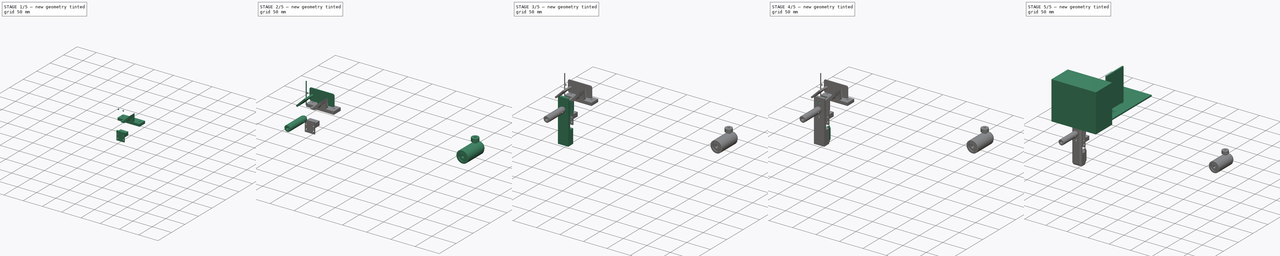
[diagram: build sequence overview — one tinted view per stage of 5, left to right]
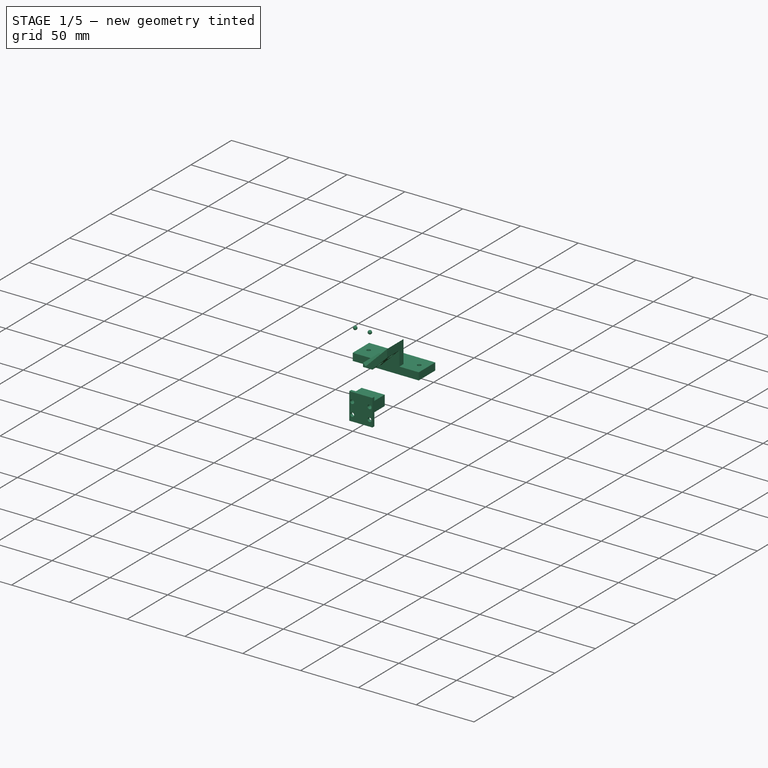
[diagram: stage 1 of 5 — iso view after this stage's code; geometry added in this stage tinted green]
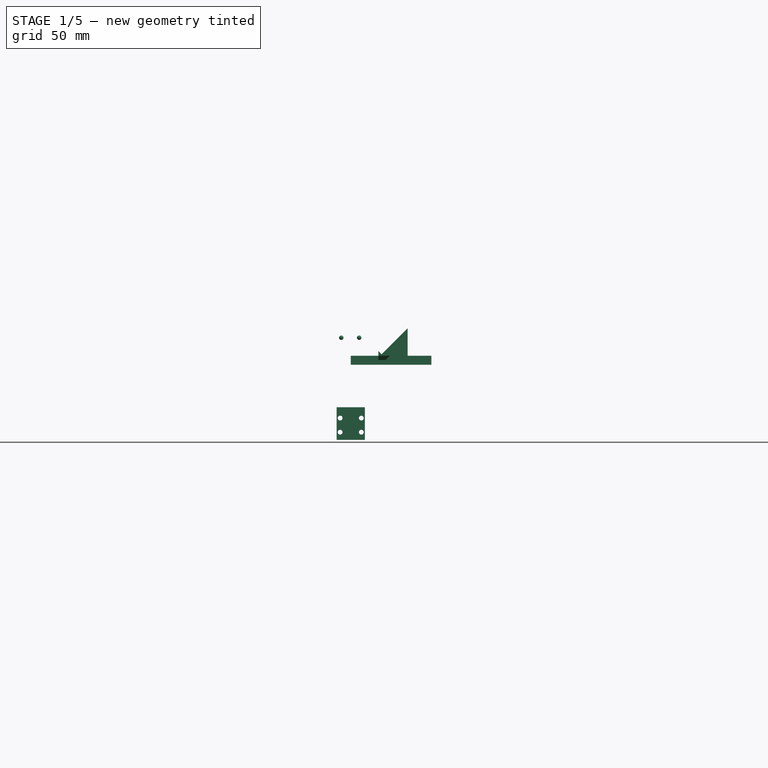
[diagram: stage 1 of 5 — front view after this stage's code; geometry added in this stage tinted green]
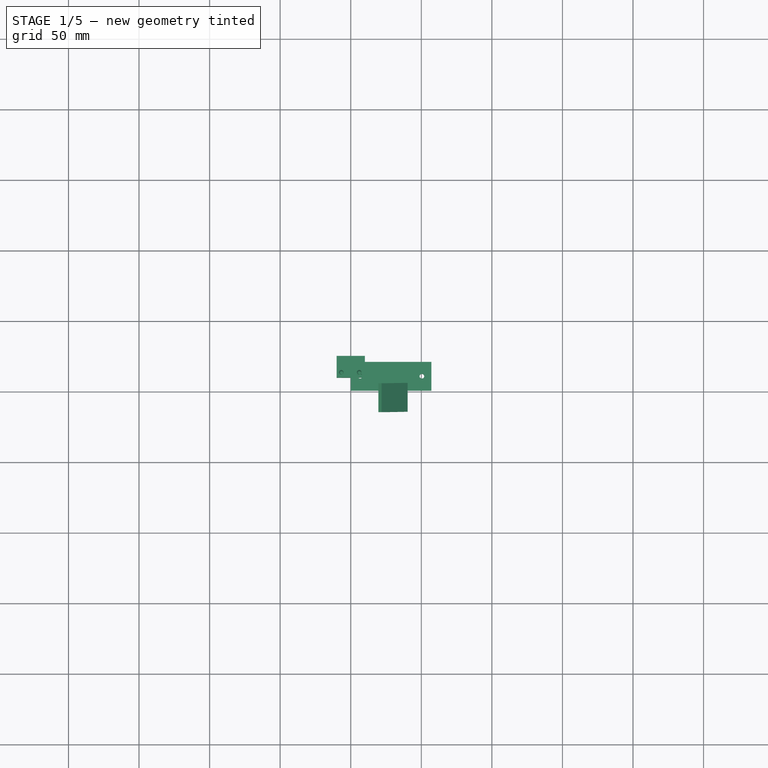
[diagram: stage 1 of 5 — top view after this stage's code; geometry added in this stage tinted green]
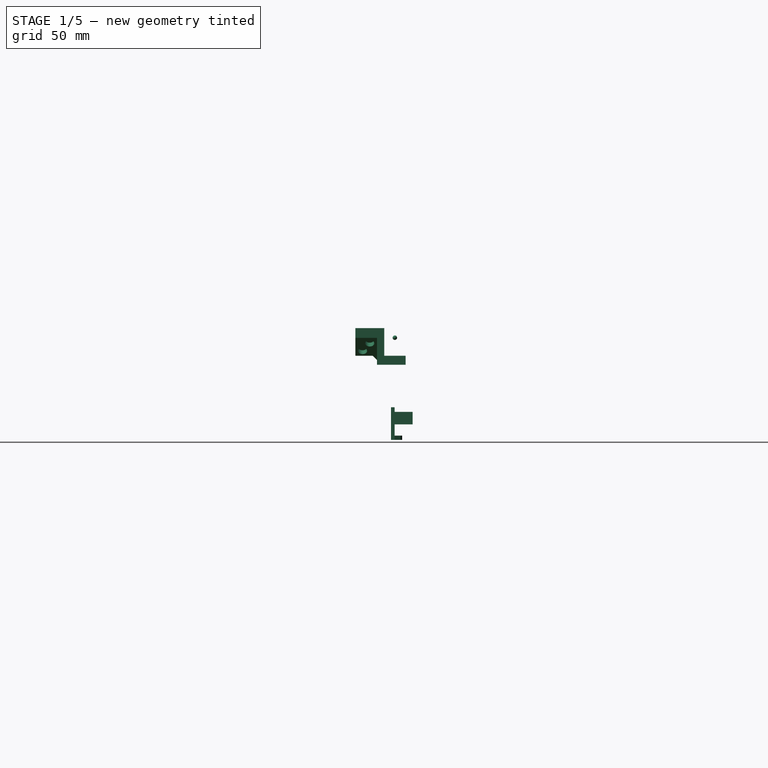
[diagram: stage 1 of 5 — right view after this stage's code; geometry added in this stage tinted green]
FCSTD DOCUMENT  (FreeCAD 0.20R29410 (Git))
Label: Rig model 2D doublestep
License: All rights reserved
LicenseURL: http://en.wikipedia.org/wiki/All_rights_reserved
objects: Part::Feature×62, Sketcher::SketchObject×31, PartDesign::Pad×18, App::Part×16, PartDesign::Pocket×13, PartDesign::Chamfer×9, PartDesign::Body×8, Part::Sphere×3, Spreadsheet::Sheet×3, Part::Box×2, Part::Compound2×2, PartDesign::Fillet×2, Part::MultiFuse×1, Part::Mirroring×1, Part::FeaturePython×1, Drawing::FeaturePage×1
note: 193 computed .brp shape members not serialized (recipe doc carries the construction recipe); baked Part::Feature solids carry a one-line shape summary decoded from their .brp

FEATURE [Part::Feature] Part__Feature016013001  label="0335-E0W001"
  Placement = pos=(0.00434,-0.02736,-50.7568) rot=(1,0,0;1.5708rad)
  shape: bbox 12.69 x 12.69 x 54.94 mm, 56 faces, 2 solids (baked)
FEATURE [App::Part] Part005  label="Strobe light"
  Group = -> [Box001,Sphere002,Array,Part__Feature016013001]
  Origin = -> Origin009
  Placement = pos=(127,0,-38.1) rot=(0,0,-1;0.959931rad)
FEATURE [Part::Feature] Part__Mirroring001  label="Rig wall assembly (Mirror #1)001"
  Placement = pos=(0,-6e-15,5e-15) rot=(0,0,1;3.14159rad)
  shape: bbox 15.9 x 57.07 x 76.12 mm, 23 faces, 2 solids (baked)
FEATURE [Drawing::FeaturePage] Page
  EditableTexts = AUTHOR NAME | DRAWING TITLE | FreeCAD DRAWING | A0 | X / Y | SCALE | PN | DN | DD/MM/YYYY | REV A
  Template = C:/Program Files/FreeCAD 0.20/data/Mod/Drawing/Templates/A0_Landscape_ISO7200.svg
FEATURE [Part::Feature] Part__Feature016013002  label="Carriage - 8438K3"
  Placement = pos=(0,0,-45.9996) rot=(0,0,1;0rad)
  shape: bbox 20 x 8.001 x 30 mm, 186 faces (baked)
  expr: .Placement.Base.z = -0.6492" + 0.0586656" - 31mm
FEATURE [Sketcher::SketchObject] Sketch036  label="Spout mount main profile"
  FullyConstrained = true
  MapMode = 5
  Placement = pos=(0,10,-45.9996) rot=(0,0.707107,0.707107;3.14159rad)
  expr: Constraints[10] = 3.4mm / 2
  expr: Constraints[14] = 15mm
  expr: Constraints[16] = 10mm
  expr: Constraints[17] = 5.4mm
  sketch-geometry (8):
    g0: LineSegment StartX=-9.99998 StartY=12.7 StartZ=0 EndX=9.99998 EndY=12.7 EndZ=0
    g1: LineSegment StartX=9.99998 StartY=12.7 StartZ=0 EndX=9.99998 EndY=-10.3988 EndZ=0
    g2: LineSegment StartX=9.99998 StartY=-10.3988 StartZ=0 EndX=-9.99998 EndY=-10.3988 EndZ=0
    g3: LineSegment StartX=-9.99998 StartY=-10.3988 StartZ=0 EndX=-9.99998 EndY=12.7 EndZ=0
    g4: Circle CenterX=-7.5 CenterY=5.00124 CenterZ=0 NormalX=0 NormalY=0 NormalZ=1 AngleXU=0 Radius=1.7
    g5: Circle CenterX=-7.5 CenterY=-4.99876 CenterZ=0 NormalX=0 NormalY=0 NormalZ=1 AngleXU=0 Radius=1.7
    g6: Circle CenterX=7.5 CenterY=-4.99876 CenterZ=0 NormalX=0 NormalY=0 NormalZ=1 AngleXU=0 Radius=1.7
    g7: Circle CenterX=7.5 CenterY=5.00124 CenterZ=0 NormalX=0 NormalY=0 NormalZ=1 AngleXU=0 Radius=1.7
  constraints (21):
    c: Coincident(g0,g1)
    c: Coincident(g1,g2)
    c: Coincident(g2,g3)
    c: Coincident(g3,g0)
    c: Horizontal(g2)
    c: Vertical(g1)
    c: Vertical(g3)
    c: DistanceX(g0,g0) = 20
    c: Symmetric(g0,g0,g-2)
    c: DistanceY(g2) = -10.3988
    c: Radius(g4) = 1.7
    c: Equal(g4,g5) = 1.7
    c: Symmetric(g4,g7,g-2)
    c: Symmetric(g5,g6,g-2)
    c: DistanceX(g5,g6) = 15
    c: DistanceX(g5,g4) = 0
    c: DistanceY(g5,g4) = 10
    c: DistanceY(g2,g5) = 5.4
    c: Equal(g4,g7)
    c: Equal(g7,g6)
    c: DistanceY(g0) = 12.7
FEATURE [PartDesign::Pad] Pad003
  AllowMultiFace = false
  Direction = (1,1,1)
  Length = 2.54
  Length2 = 99.9998
  Placement = pos=(0,10,-45.9996) rot=(0,0.707107,0.707107;3.14159rad)
  Profile = -> Sketch036
  Type = 0
FEATURE [PartDesign::Body] Body004  label="Linear actuator static mount"
  Group = -> [Sketch044,Sketch045,Sketch046,Sketch047,Pad009,Pocket010,Pocket011,Pocket012,Sketch048,Pad010,Sketch049,Pocket013,Chamfer003]
  Origin = -> Origin014
  Tip = -> Chamfer003
FEATURE [Sketcher::SketchObject] Sketch051  label="Spout mount main profile001"
  FullyConstrained = true
  MapMode = 5
  Placement = pos=(0,12.54,-45.9996) rot=(0,0.707107,0.707107;3.14159rad)
  Support = -> [Pad003]
  expr: Constraints[10] = 3.4mm / 2
  expr: Constraints[14] = 15mm
  expr: Constraints[16] = 10mm
  expr: Constraints[17] = 5.4mm
  sketch-geometry (13):
    g0: LineSegment StartX=-9.99998 StartY=12.7 StartZ=0 EndX=9.99998 EndY=12.7 EndZ=0
    g1: LineSegment StartX=9.99998 StartY=12.7 StartZ=0 EndX=9.99998 EndY=-10.3988 EndZ=0
    g2: LineSegment StartX=9.99998 StartY=-10.3988 StartZ=0 EndX=-9.99998 EndY=-10.3988 EndZ=0
    g3: LineSegment StartX=-9.99998 StartY=-10.3988 StartZ=0 EndX=-9.99998 EndY=12.7 EndZ=0
    g4: Circle CenterX=-7.5 CenterY=5.00124 CenterZ=0 NormalX=0 NormalY=0 NormalZ=1 AngleXU=0 Radius=1.7
    g5: Circle CenterX=-7.5 CenterY=-4.99876 CenterZ=0 NormalX=0 NormalY=0 NormalZ=1 AngleXU=0 Radius=1.7
    g6: Circle CenterX=7.5 CenterY=-4.99876 CenterZ=0 NormalX=0 NormalY=0 NormalZ=1 AngleXU=0 Radius=1.7
    g7: Circle CenterX=7.5 CenterY=5.00124 CenterZ=0 NormalX=0 NormalY=0 NormalZ=1 AngleXU=0 Radius=1.7
    g8: LineSegment StartX=-9.99998 StartY=9.44624 StartZ=0 EndX=9.99998 EndY=9.44624 EndZ=0
    g9: LineSegment StartX=9.99998 StartY=9.44624 StartZ=0 EndX=9.99998 EndY=0.55624 EndZ=0
    g10: LineSegment StartX=9.99998 StartY=0.55624 StartZ=0 EndX=-9.99998 EndY=0.55624 EndZ=0
    g11: LineSegment StartX=-9.99998 StartY=0.55624 StartZ=0 EndX=-9.99998 EndY=9.44624 EndZ=0
    g12: LineSegment StartX=-7.5 StartY=5.00124 StartZ=0 EndX=7.5 EndY=5.00124 EndZ=0
  constraints (33):
    c: Coincident(g0,g1)
    c: Coincident(g1,g2)
    c: Coincident(g2,g3)
    c: Coincident(g3,g0)
    c: Horizontal(g2)
    c: Vertical(g1)
    c: Vertical(g3)
    c: DistanceX(g0,g0) = 20
    c: Symmetric(g0,g0,g-2)
    c: DistanceY(g2) = -10.3988
    c: Radius(g4) = 1.7
    c: Equal(g4,g5) = 1.7
    c: Symmetric(g4,g7,g-2)
    c: Symmetric(g5,g6,g-2)
    c: DistanceX(g5,g6) = 15
    c: DistanceX(g5,g4) = 0
    c: DistanceY(g5,g4) = 10
    c: DistanceY(g2,g5) = 5.4
    c: Equal(g4,g7)
    c: Equal(g7,g6)
    c: DistanceY(g0) = 12.7
    c: Coincident(g8,g9)
    c: Coincident(g9,g10)
    c: Coincident(g10,g11)
    c: Coincident(g11,g8)
    c: Horizontal(g10)
    c: Vertical(g11)
    c: Symmetric(g8,g8,g-2)
    c: Coincident(g12,g4)
    c: Coincident(g12,g7)
    c: DistanceX(g8,g0) = 0
    c: Symmetric(g8,g9,g12)
    c: DistanceY(g9,g9) = 8.89
FEATURE [PartDesign::Pad] Pad011
  BaseFeature = -> Pad003
  Direction = (1,1,1)
  Length = 12.7
  Length2 = 99.9998
  Placement = pos=(0,10,-45.9996) rot=(0,0.707107,0.707107;3.14159rad)
  Profile = -> Sketch051
  Type = 0
FEATURE [PartDesign::Pad] Pad012
  BaseFeature = -> Pad011
  Direction = (1,1,1)
  Length = 2.975
  Length2 = 99.9998
  Placement = pos=(0,10,-45.9996) rot=(0,0.707107,0.707107;3.14159rad)
  Profile = -> Sketch050
  Reversed = true
  Type = 0
  expr: Length = 0.125" - 0.2mm
FEATURE [Part::Feature] Compound002001  label="91800A077_18-8 Stainless Steel Narrow Cheese Head Slotted Screws001"
  Placement = pos=(12.7,13.1,-63.5) rot=(0,1,0;1.5708rad)
  shape: bbox 3.885 x 2.35 x 2.302 mm, 68 faces, 2 solids (baked)
FEATURE [Part::Feature] Compound002002  label="91800A077_18-8 Stainless Steel Narrow Cheese Head Slotted Screws002"
  Placement = pos=(12.7,18.7,-63.5) rot=(0,1,0;1.5708rad)
  shape: bbox 3.885 x 2.35 x 2.302 mm, 68 faces, 2 solids (baked)
FEATURE [Part::Feature] Compound002003  label="91800A077_18-8 Stainless Steel Narrow Cheese Head Slotted Screws003"
  Placement = pos=(12.7,13.1,-90.5) rot=(0,1,0;1.5708rad)
  shape: bbox 3.885 x 2.35 x 2.302 mm, 68 faces, 2 solids (baked)
FEATURE [Part::Feature] Compound002004  label="91800A077_18-8 Stainless Steel Narrow Cheese Head Slotted Screws004"
  Placement = pos=(12.7,18.7,-90.5) rot=(0,1,0;1.5708rad)
  shape: bbox 3.885 x 2.35 x 2.302 mm, 68 faces, 2 solids (baked)
FEATURE [App::Part] Part013  label="Motor mount screws"
  Group = -> [Compound002001,Compound002002,Compound002003,Compound002004]
  Origin = -> Origin023
  Placement = pos=(-6.95,0,0) rot=(0,0,1;0rad)
FEATURE [App::Part] Part008  label="Static parts"
  Group = -> [Body004,Part__Feature016013004,Part013,Part__Feature016013005,Solid012,Solid013,Compound001]
  Origin = -> Origin013
FEATURE [Part::Feature] Compound002005  label="91800A077_18-8 Stainless Steel Narrow Cheese Head Slotted Screws005"
  Placement = pos=(12.7,13.1,-63.5) rot=(0,1,0;1.5708rad)
  shape: bbox 3.885 x 2.35 x 2.302 mm, 68 faces, 2 solids (baked)
FEATURE [Part::Feature] Compound002006  label="91800A077_18-8 Stainless Steel Narrow Cheese Head Slotted Screws006"
  Placement = pos=(12.7,18.7,-63.5) rot=(0,1,0;1.5708rad)
  shape: bbox 3.885 x 2.35 x 2.302 mm, 68 faces, 2 solids (baked)
FEATURE [Part::Feature] Compound002007  label="91800A077_18-8 Stainless Steel Narrow Cheese Head Slotted Screws007"
  Placement = pos=(12.7,13.1,-90.5) rot=(0,1,0;1.5708rad)
  shape: bbox 3.885 x 2.35 x 2.302 mm, 68 faces, 2 solids (baked)
FEATURE [Part::Feature] Compound002008  label="91800A077_18-8 Stainless Steel Narrow Cheese Head Slotted Screws008"
  Placement = pos=(12.7,18.7,-90.5) rot=(0,1,0;1.5708rad)
  shape: bbox 3.885 x 2.35 x 2.302 mm, 68 faces, 2 solids (baked)
FEATURE [App::Part] Part014  label="Motor mount screws001"
  Group = -> [Compound002005,Compound002006,Compound002007,Compound002008]
  Origin = -> Origin024
  Placement = pos=(-6.925,0,0) rot=(0,0,1;0rad)
FEATURE [App::Part] Part012  label="Static parts001"
  Group = -> [Body006,Part__Feature016013008,Part014,Part__Feature016013009]
  Origin = -> Origin019
FEATURE [App::Part] Part010  label="Top spout assembly"
  Group = -> [Part011,Spreadsheet001,Part012]
  Origin = -> Origin016
  Placement = pos=(-23.5,30.25,-40.75) rot=(0,1,0;4.71239rad)
FEATURE [Sketcher::SketchObject] Sketch064  label="Mounting platform"
  FullyConstrained = false
  MapMode = 5
  Support = -> [XY_Plane025]
  expr: Constraints[11] = 0.13in / 2
  expr: Constraints[15] = (2.25in - 1.72in) / 2
  expr: Constraints[16] = (2.25in - 1.72in) / 2
  expr: Constraints[9] = <<ss002>>.w
  sketch-geometry (6):
    g0: LineSegment StartX=0 StartY=20.32 StartZ=0 EndX=57.15 EndY=20.32 EndZ=0
    g1: LineSegment StartX=57.15 StartY=20.32 StartZ=0 EndX=57.15 EndY=0 EndZ=0
    g2: LineSegment StartX=57.15 StartY=0 StartZ=0 EndX=0 EndY=0 EndZ=0
    g3: LineSegment StartX=0 StartY=0 StartZ=0 EndX=0 EndY=20.32 EndZ=0
    g4: Circle CenterX=6.731 CenterY=10.16 CenterZ=0 NormalX=0 NormalY=0 NormalZ=1 AngleXU=0 Radius=1.651
    g5: Circle CenterX=50.419 CenterY=10.16 CenterZ=0 NormalX=0 NormalY=0 NormalZ=1 AngleXU=0 Radius=1.651
  constraints (17):
    c: Coincident(g0,g1)
    c: Coincident(g1,g2)
    c: Coincident(g2,g3)
    c: Coincident(g3,g0)
    c: Horizontal(g0)
    c: Horizontal(g2)
    c: Vertical(g1)
    c: Vertical(g3)
    c: Coincident(g2,g-1)
    c: Distance(g0) = 57.15
    c: Distance(g1) = 20.32
    c: Radius(g4) = 1.651
    c: Equal(g4,g5)
    c: DistanceY(g5,g4) = 0
    c: DistanceY(g-1,g4) = 10.16
    c: DistanceX(g4) = 6.731
    c: DistanceX(g5,g1) = 6.731
FEATURE [PartDesign::Pad] Pad021
  AllowMultiFace = false
  Direction = (1,1,1)
  Length = 6.35
  Length2 = 99.9998
  Midplane = true
  Profile = -> Sketch064
  Type = 0
FEATURE [Sketcher::SketchObject] Sketch003  label="Mirror mount"
  FullyConstrained = false
  MapMode = 5
  Placement = pos=(0,0,0) rot=(1,0,0;1.5708rad)
  expr: Constraints[14] = 3.2mm
  expr: Constraints[7] = <<ss002>>.xMirror
  sketch-geometry (7):
    g0: LineSegment StartX=40.3568 StartY=3.175 StartZ=0 EndX=40.3568 EndY=22.7116 EndZ=0
    g1: LineSegment StartX=40.3568 StartY=22.7116 StartZ=0 EndX=21.8575 EndY=4.21226 EndZ=0
    g2: LineSegment StartX=21.8575 StartY=4.21226 StartZ=0 EndX=19.6124 EndY=6.45732 EndZ=0
    g3: LineSegment StartX=19.6124 StartY=6.45732 StartZ=0 EndX=19.6124 EndY=3.175 EndZ=0
    g4: LineSegment StartX=21.8575 StartY=4.21226 StartZ=0 EndX=19.5947 EndY=6.475 EndZ=0
    g5: LineSegment StartX=19.6124 StartY=3.175 StartZ=0 EndX=40.3568 EndY=3.175 EndZ=0
    g6: LineSegment StartX=19.5947 StartY=6.475 StartZ=0 EndX=37.5553 EndY=24.4355 EndZ=0
  constraints (21):
    c: Coincident(g2,g3)
    c: Perpendicular(g1,g2)
    c: Distance(g1) = 26.162
    c: Vertical(g3)
    c: Vertical(g0)
    c: Coincident(g1,g4)
    c: Parallel(g4,g2)
    c: DistanceX(g-1,g4) = 19.5947
    c: DistanceY(g3,g4) = 3.3
    c: Coincident(g0,g5)
    c: Coincident(g3,g5)
    c: Horizontal(g5)
    c: DistanceY(g-1,g3) = 3.175
    c: Coincident(g1,g2)
    c: Distance(g4) = 3.2
    c: Angle(g5,g1) = 0.785398
    c: Coincident(g1,g0)
    c: Distance(g2) = 3.175
    c: Distance(g6) = 25.4
    c: Coincident(g6,g4)
    c: Perpendicular(g4,g6)
FEATURE [PartDesign::Pad] Pad002
  AllowMultiFace = false
  BaseFeature = -> Pad021
  Direction = (1,1,1)
  Length = 15.24
  Length2 = 5.1402
  Profile = -> Sketch003
  Type = 4
  expr: Length2 = <<ss002>>.dyWall
FEATURE [PartDesign::Chamfer] Chamfer006  label="Chamfer007"
  Angle = 45
  Base = -> Pad002 [Edge31]
  BaseFeature = -> Pad002
  ChamferType = 0
  FlipDirection = false
  Size = 12.7
  Size2 = 1
  SupportTransform = false
  UseAllEdges = false
FEATURE [PartDesign::Chamfer] Chamfer001
  Angle = 45
  Base = -> Chamfer006 [Edge1]
  BaseFeature = -> Chamfer006
  ChamferType = 0
  FlipDirection = false
  Size = 3.048
  Size2 = 1
  SupportTransform = false
  UseAllEdges = false
FEATURE [Sketcher::SketchObject] Sketch004  label="Magnet holes"
  FullyConstrained = false
  MapMode = 5
  Placement = pos=(12.2409,-5.9e-15,-12.2409) rot=(0.678598,0.678598,0.281085;2.59356rad)
  Support = -> [Chamfer001]
  expr: Constraints[0] = (0.25in + 0.003in) / 2
  sketch-geometry (2):
    g0: Circle CenterX=-10.16 CenterY=26.67 CenterZ=0 NormalX=0 NormalY=0 NormalZ=1 AngleXU=0 Radius=3.2131
    g1: Circle CenterX=-5.08 CenterY=34.29 CenterZ=0 NormalX=0 NormalY=0 NormalZ=1 AngleXU=0 Radius=3.2131
  constraints (6):
    c: Radius(g0) = 3.2131
    c: Equal(g0,g1)
    c: DistanceX(g0,g-1) = 10.16
    c: DistanceY(g-1,g0) = 26.67
    c: DistanceX(g0,g1) = 5.08
    c: DistanceY(g0,g1) = 7.62
FEATURE [PartDesign::Pocket] Pocket001
  AllowMultiFace = false
  BaseFeature = -> Chamfer001
  Direction = (1,1,1)
  Length = 3.81762
  Length2 = 99.9998
  Profile = -> Sketch004
  Type = 0
  expr: Length = 0.1903" - 0.04"
FEATURE [PartDesign::Body] Body009  label="Mirror mount001"
  Group = -> [Sketch064,Pad021,Sketch003,Pad002,Chamfer006,Chamfer001,Sketch004,Pocket001,Sketch005,Pad022,Sketch006,Pad023,Sketch007,Pad005,Chamfer007,Fillet,Fillet003,Chamfer008]
  Origin = -> Origin025
  Placement = pos=(-28.555,2.545,-3.175) rot=(0,0,1;0rad)
  Tip = -> Chamfer008
FEATURE [Part::Sphere] Sphere001
  Angle1 = -90
  Angle2 = 90
  Angle3 = 360
  AttacherType = Attacher::AttachEngine3D
  Placement = pos=(5.969,12.7,15.9766) rot=(0,0,1;0rad)
  Radius = 1.5875
  expr: Radius = 0.125" / 2
FEATURE [Part::Sphere] Sphere
  Angle1 = -90
  Angle2 = 90
  Angle3 = 360
  AttacherType = Attacher::AttachEngine3D
  Placement = pos=(-6.7056,12.7,15.9766) rot=(0,0,1;0rad)
  Radius = 1.5875
  expr: Radius = 0.125" / 2
FEATURE [Part::Feature] Fusion001  label="Rig wall assembly001"
  Placement = pos=(-306.832,-87.0458,-101.6) rot=(1,0,0;1.5708rad)
  shape: bbox 15.9 x 57.07 x 76.12 mm, 23 faces, 2 solids (baked)
FEATURE [App::Part] Part  label="Platform"
  Group = -> [Sphere,Sphere001,Body001,Fusion,Body,Extrude001,Part__Mirroring,Part__Mirroring001,Box,Body009,Fusion001]
  Origin = -> Origin
  Placement = pos=(304.8,88.9,12.7) rot=(0,0,1;0rad)
FEATURE [App::Part] Part015  label="Other moving parts"
  Group = -> [Body002,Part__Feature016013002,Solid004,Solid005,Part__Feature016013003]
  Origin = -> Origin026
FEATURE [App::Part] Part007  label="Moving parts"
  Group = -> [Part010,Part015]
  Origin = -> Origin012
  Placement = pos=(0,0,19.5) rot=(0,0,1;0rad)
FEATURE [App::Part] Part009  label="Bottom spout assembly"
  Group = -> [Part007,Spreadsheet,Part008]
  Origin = -> Origin015
  Placement = pos=(281.825,25.425,30.35) rot=(-0.57735,0.57735,0.57735;4.18879rad)
FEATURE [App::Part] Part003  label="Spout assembly"
  Group = -> [Part009]
  Origin = -> Origin006
  Placement = pos=(0,0,-35.56) rot=(0,0,1;0rad)
FEATURE [App::Part] Part006  label="Rig"
  Group = -> [Part,MB1218,Part001,Part002,Part003,Part005]
  Origin = -> Origin010
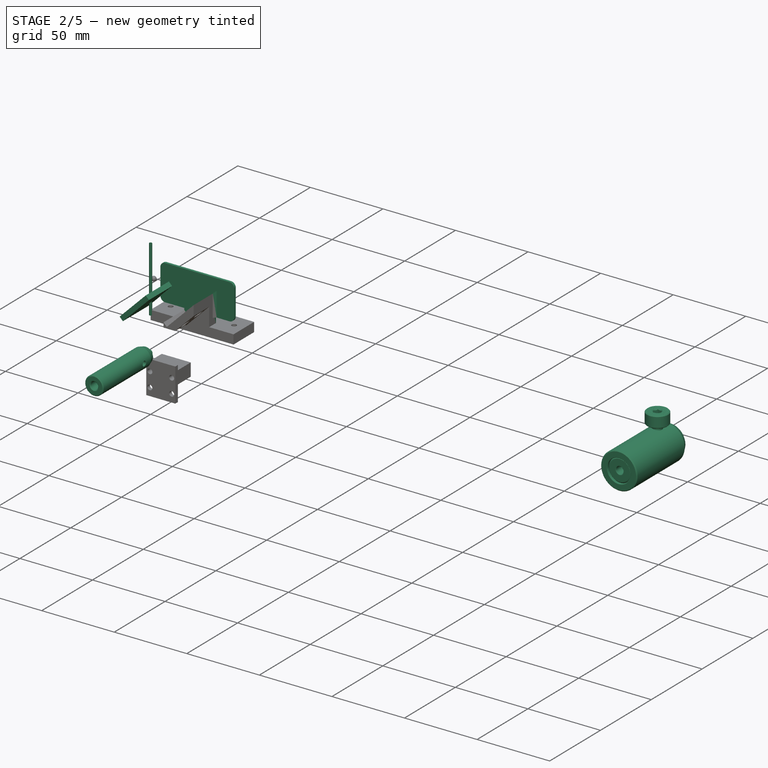
[diagram: stage 2 of 5 — iso view after this stage's code; geometry added in this stage tinted green]
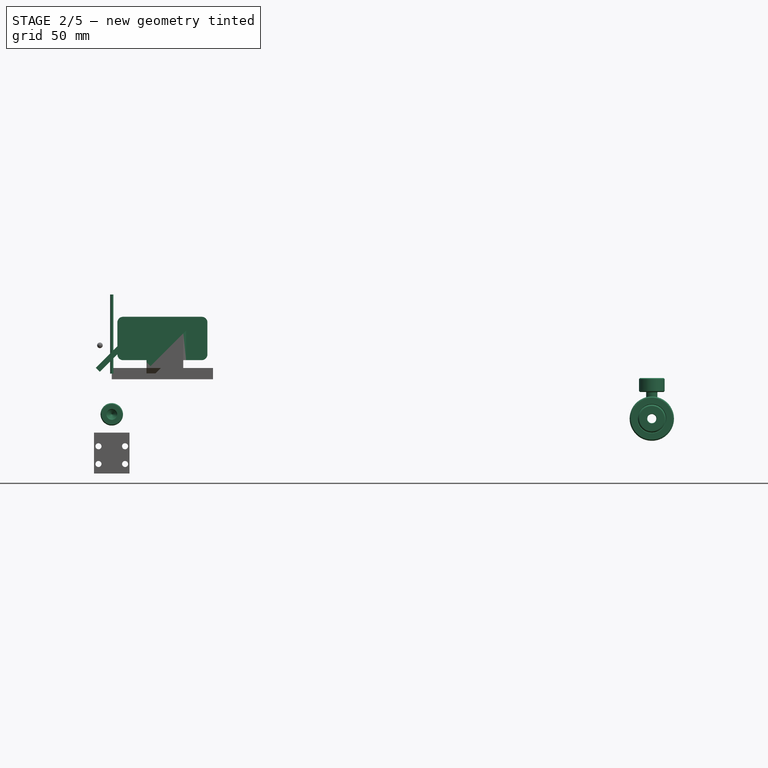
[diagram: stage 2 of 5 — front view after this stage's code; geometry added in this stage tinted green]
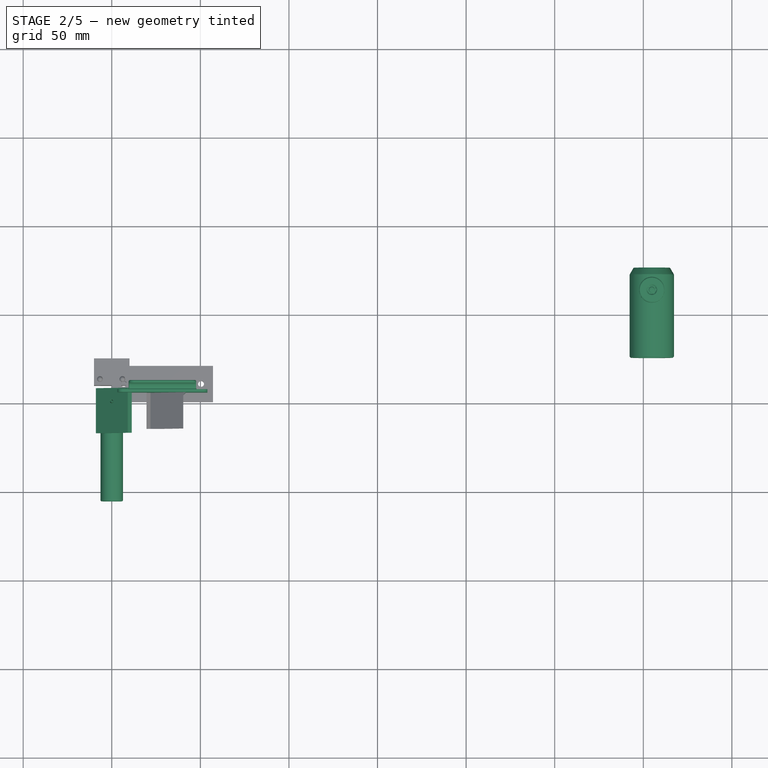
[diagram: stage 2 of 5 — top view after this stage's code; geometry added in this stage tinted green]
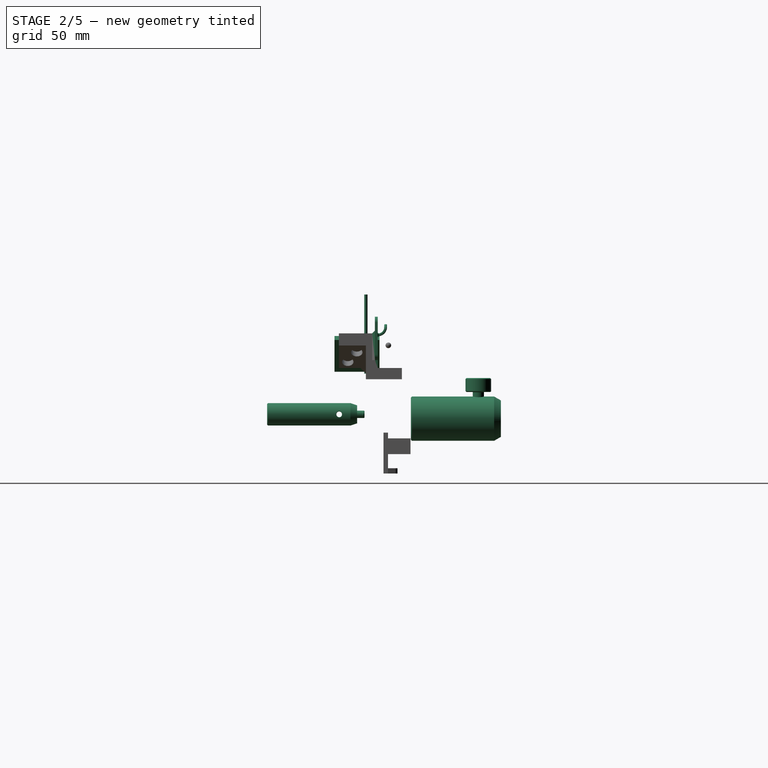
[diagram: stage 2 of 5 — right view after this stage's code; geometry added in this stage tinted green]
FEATURE [PartDesign::Body] Body007  label="Linear actuator dynamic mount002"
  Group = -> [Sketch061,Pad018,Sketch037,Sketch038,Pad004,Sketch040,Pocket005,Pocket006,Chamfer,Sketch062,Pad019,Chamfer002,Chamfer005]
  Origin = -> Origin021
  Tip = -> Chamfer005
FEATURE [Part::Feature] Solid  label="90116A150_316 Stainless Steel Pan Head Phillips Screws"
  Placement = pos=(7.5,7.5,-41) rot=(-1,0,0;1.5708rad)
  shape: bbox 6.495 x 7.719 x 6.495 mm, 90 faces (baked)
FEATURE [Part::Feature] Solid001  label="90116A150_316 Stainless Steel Pan Head Phillips Screws001"
  Placement = pos=(-7.5,7.5,-41) rot=(-1,0,0;1.5708rad)
  shape: bbox 6.495 x 7.719 x 6.495 mm, 90 faces (baked)
FEATURE [Part::Feature] Solid002  label="90116A150_316 Stainless Steel Pan Head Phillips Screws002"
  Placement = pos=(7.5,7.5,-51) rot=(-1,0,0;1.5708rad)
  shape: bbox 6.495 x 7.719 x 6.495 mm, 90 faces (baked)
FEATURE [Part::Feature] Solid003  label="90116A150_316 Stainless Steel Pan Head Phillips Screws003"
  Placement = pos=(-7.5,7.5,-51) rot=(-1,0,0;1.5708rad)
  shape: bbox 6.495 x 7.719 x 6.495 mm, 90 faces (baked)
FEATURE [Part::Feature] Solid004  label="90116A150_316 Stainless Steel Pan Head Phillips Screws004"
  Placement = pos=(-7.5,7.5,-51) rot=(-1,0,0;1.5708rad)
  shape: bbox 6.495 x 7.719 x 6.495 mm, 90 faces (baked)
FEATURE [Part::Feature] Solid005  label="90116A150_316 Stainless Steel Pan Head Phillips Screws005"
  Placement = pos=(7.5,7.5,-51) rot=(-1,0,0;1.5708rad)
  shape: bbox 6.495 x 7.719 x 6.495 mm, 90 faces (baked)
FEATURE [Part::Box] Box  label="Mirror"
  AttacherType = Attacher::AttachEngine3D
  Height = 25.4
  Length = 3.2
  Placement = pos=(-8.96258,-17.675,3.30572) rot=(0,1,0;0.785398rad)
  Width = 25.4
  expr: Height = 1"
  expr: Width = 1"
FEATURE [Sketcher::SketchObject] Sketch063  label="Spout profile"
  FullyConstrained = true
  MapMode = 5
  Support = -> [XY_Plane022]
  expr: Constraints[3] = 0.07199999999999999" - 2 * 0.005"
  sketch-geometry (2):
    g0: Circle CenterX=0 CenterY=0 CenterZ=0 NormalX=0 NormalY=0 NormalZ=1 AngleXU=0 Radius=0.9144
    g1: Circle CenterX=0 CenterY=0 CenterZ=0 NormalX=0 NormalY=0 NormalZ=1 AngleXU=0 Radius=0.7874
  constraints (4):
    c: Coincident(g0,g-1)
    c: Coincident(g1,g0)
    c: Diameter(g0) = 1.8288
    c: Diameter(g1) = 1.5748
FEATURE [PartDesign::Pad] Pad020
  Direction = (0,0,1)
  Length = 44.7
  Length2 = 10
  Profile = -> Sketch063
  ReferenceAxis = -> Sketch063 [N_Axis]
  Type = 0
FEATURE [PartDesign::Body] Body008  label="Spout"
  Group = -> [Sketch063,Pad020]
  Origin = -> Origin022
  Placement = pos=(0,13.275,-26.1) rot=(0,0,1;0rad)
  Tip = -> Pad020
FEATURE [App::Part] Part011  label="Moving parts001"
  Group = -> [Part__Feature016013006,Body007,Solid,Solid001,Solid002,Solid003,Body008,Part__Feature016013007]
  Origin = -> Origin018
  Placement = pos=(0,0,14.5) rot=(0,0,1;0rad)
FEATURE [Part::Feature] Solid006
  shape: bbox 25 x 50.8 x 25 mm, 23 faces (baked)
FEATURE [Part::Feature] Solid007
  shape: bbox 15.88 x 5.969 x 15.88 mm, 14 faces (baked)
FEATURE [Part::Feature] Solid008
  shape: bbox 14.48 x 14.48 x 16.13 mm, 276 faces (baked)
FEATURE [Part::Feature] Solid009
  shape: bbox 2.997 x 2.997 x 3.556 mm, 8 faces (baked)
FEATURE [Part::Feature] Solid010
  shape: bbox 3.505 x 3.505 x 3.175 mm, 16 faces (baked)
FEATURE [Part::Feature] Solid011
  shape: bbox 3.419 x 3.38 x 7.519 mm, 25 faces (baked)
FEATURE [Part::Compound2] Compound  label="0493-E0W"
  Links = -> [Solid006,Solid007,Solid008,Solid009,Solid010,Solid011]
  Placement = pos=(304.8,50.8,-25.4) rot=(0,0,1;0rad)
FEATURE [App::Part] MB1218  label="Rig base"
  Group = -> [Part__Feature,Part__Feature001,Part__Feature002,Part__Feature003,Part__Feature004,Part__Feature005,Part__Feature006,Part__Feature007,Part__Feature008,Part__Feature009,Part__Feature010,Part__Feature012,Solid009,Solid011,Solid010,Solid007,Solid006,Solid008,Compound]
  Origin = -> Origin002
  Placement = pos=(0,0,-101.6) rot=(1,0,0;1.5708rad)
FEATURE [Part::Feature] Solid012
  shape: bbox 12.67 x 50.8 x 12.67 mm, 26 faces (baked)
FEATURE [Part::Feature] Solid013
  shape: bbox 4.166 x 12.7 x 4.166 mm, 30 faces (baked)
FEATURE [Part::Compound2] Compound001  label="0335-E0W"
  Links = -> [Solid012,Solid013]
  Placement = pos=(0,-55.6895,-22.97) rot=(0,-1,0;1.5708rad)
  expr: .Placement.Base.y = -63.5mm
  expr: .Placement.Base.z = -25.4mm + 2.43mm
FEATURE [Spreadsheet::Sheet] Spreadsheet002  label="ss002"
  cells = A1=Wall displacement; B1(dyWall)==1mm + 0.163"; A2=Post displacement; B2(dyPost)==1mm + 0.4"; A3=Mount width; B3(w)==2.25"; A4=Wall thickness; B4(Wt)==0.0625"; A5=Wall height; B5(Wh)==1" + 1.5mm + 2mm; A6=Base thickness; B6(Bt)==0.25"; A7=Acrylic gap; B7(AGt)==0.125" + 0.05"; A8=Perch height; B8(Ph)==17.7165mm + 0.5mm + 6.5mm; A9=Mirror start point; B9(xMirror)==(2.25" - 1" / sqrt(2)) / 2
FEATURE [Sketcher::SketchObject] Sketch005  label="Wall"
  AttachmentOffset = pos=(0,0,28.575) rot=(0,0,1;0rad)
  FullyConstrained = false
  MapMode = 5
  Placement = pos=(28.575,-6.3e-15,6.3e-15) rot=(0.57735,0.57735,0.57735;2.0944rad)
  Support = -> [YZ_Plane025]
  expr: .AttachmentOffset.Base.z = <<ss002>>.w / 2
  expr: Constraints[26] = <<ss002>>.Wt
  expr: Constraints[27] = <<ss002>>.Wh + <<ss002>>.Bt / 2
  expr: Constraints[33] = <<ss002>>.dyPost
  expr: Constraints[34] = <<ss002>>.dyWall
  expr: Constraints[35] = <<ss002>>.Bt / 2 + <<ss002>>.AGt
  expr: Constraints[37] = <<ss002>>.Bt / 2 + <<ss002>>.Ph
  sketch-geometry (13):
    g0: LineSegment StartX=6.7277 StartY=25.8405 StartZ=0 EndX=6.7277 EndY=32.075 EndZ=0
    g1: LineSegment StartX=6.7277 StartY=32.075 StartZ=0 EndX=5.1402 EndY=32.075 EndZ=0
    g2: LineSegment StartX=5.1402 StartY=32.075 StartZ=0 EndX=5.1402 EndY=7.62 EndZ=0
    g3: LineSegment StartX=5.1402 StartY=7.62 StartZ=0 EndX=6.7277 EndY=7.62 EndZ=0
    g4: LineSegment StartX=6.7277 StartY=7.62 StartZ=0 EndX=6.7277 EndY=24.253 EndZ=0
    g5: ArcOfCircle CenterX=6.7277 CenterY=29.479 CenterZ=0 NormalX=0 NormalY=0 NormalZ=1 AngleXU=0 Radius=5.22605 StartAngle=4.71239 EndAngle=6.28318
    g6: ArcOfCircle CenterX=6.7277 CenterY=29.479 CenterZ=0 NormalX=0 NormalY=0 NormalZ=1 AngleXU=0 Radius=3.63855 StartAngle=4.71239 EndAngle=6.28319
    g7: LineSegment StartX=11.9537 StartY=29.479 StartZ=0 EndX=11.9537 EndY=27.8915 EndZ=0
    g8: LineSegment StartX=10.3663 StartY=29.479 StartZ=0 EndX=10.3663 EndY=27.8915 EndZ=0
    g9: LineSegment StartX=10.3663 StartY=27.8915 StartZ=0 EndX=11.9537 EndY=27.8915 EndZ=0
    g10: LineSegment StartX=6.7277 StartY=25.8405 StartZ=0 EndX=6.7277 EndY=24.253 EndZ=0
    g11: LineSegment StartX=10.3663 StartY=27.8915 StartZ=0 EndX=11.16 EndY=27.8915 EndZ=0
    g12: LineSegment StartX=11.16 StartY=27.8915 StartZ=0 EndX=11.9537 EndY=27.8915 EndZ=0
  constraints (38):
    c: Coincident(g0,g1)
    c: Coincident(g1,g2)
    c: Coincident(g2,g3)
    c: Coincident(g3,g4)
    c: Coincident(g0,g6)
    c: PointOnObject(g6,g0)
    c: PointOnObject(g5,g4)
    c: Coincident(g4,g5)
    c: Vertical(g0)
    c: Vertical(g4)
    c: Vertical(g2)
    c: Horizontal(g3)
    c: Horizontal(g1)
    c: Coincident(g5,g7)
    c: Vertical(g7)
    c: Coincident(g5,g6)
    c: DistanceY(g5,g6) = 0
    c: Coincident(g8,g9)
    c: Coincident(g6,g8)
    c: Coincident(g7,g9)
    c: Horizontal(g9)
    c: Vertical(g8)
    c: Coincident(g4,g10)
    c: Coincident(g0,g10)
    c: Equal(g3,g10)
    c: Equal(g10,g9)
    c: DistanceX(g3,g3) = 1.5875
    c: DistanceY(g1) = 32.075
    c: Coincident(g11,g12)
    c: Coincident(g8,g11)
    c: Coincident(g12,g7)
    c: Equal(g11,g12)
    c: PointOnObject(g11,g9)
    c: DistanceX(g11) = 11.16
    c: DistanceX(g1) = 5.1402
    c: DistanceY(g2) = 7.62
    c: Equal(g9,g8)
    c: DistanceY(g12) = 27.8915
FEATURE [PartDesign::Pad] Pad022
  AllowMultiFace = false
  BaseFeature = -> Pocket001
  Direction = (1,1,1)
  Length = 50.8
  Length2 = 100
  Midplane = true
  Profile = -> Sketch005
  Type = 0
  expr: Length = 2"
FEATURE [Sketcher::SketchObject] Sketch006  label="Wall bottom"
  FullyConstrained = false
  MapMode = 5
  Placement = pos=(0,5.1402,-1e-15) rot=(0,0.707107,0.707107;3.14159rad)
  expr: Constraints[10] = (1.03" + 0.125") / sqrt(2)
  expr: Constraints[11] = <<ss002>>.AGt
  expr: Constraints[7] = -<<ss002>>.xMirror
  expr: Constraints[9] = <<ss002>>.Bt / 2
  sketch-geometry (4):
    g0: LineSegment StartX=-40.3391 StartY=7.62 StartZ=0 EndX=-19.5947 EndY=7.62 EndZ=0
    g1: LineSegment StartX=-19.5947 StartY=3.175 StartZ=0 EndX=-40.3391 EndY=3.175 EndZ=0
    g2: LineSegment StartX=-40.3391 StartY=3.175 StartZ=0 EndX=-40.3391 EndY=7.62 EndZ=0
    g3: LineSegment StartX=-19.5947 StartY=7.62 StartZ=0 EndX=-19.5947 EndY=3.175 EndZ=0
  constraints (12):
    c: Coincident(g1,g2)
    c: Coincident(g2,g0)
    c: Horizontal(g0)
    c: Horizontal(g1)
    c: Vertical(g2)
    c: Coincident(g0,g3)
    c: Coincident(g1,g3)
    c: DistanceX(g1) = -19.5947
    c: Vertical(g3)
    c: DistanceY(g1) = 3.175
    c: DistanceX(g1,g1) = 20.7444
    c: DistanceY(g2,g2) = 4.445
FEATURE [PartDesign::Pad] Pad023
  AllowMultiFace = false
  BaseFeature = -> Pad022
  Direction = (1,1,1)
  Length = 1.5875
  Length2 = 100
  Profile = -> Sketch006
  Type = 0
  expr: Length = <<ss002>>.Wt
FEATURE [Sketcher::SketchObject] Sketch007  label="Perch"
  AttachmentOffset = pos=(0,0,28.575) rot=(0,0,1;0rad)
  FullyConstrained = false
  MapMode = 5
  Placement = pos=(28.575,-6.3e-15,6.3e-15) rot=(0.57735,0.57735,0.57735;2.0944rad)
  Support = -> [YZ_Plane025]
  expr: .AttachmentOffset.Base.z = <<ss002>>.w / 2
  expr: Constraints[24] = <<ss002>>.Wt
  expr: Constraints[25] = <<ss002>>.Wh + <<ss002>>.Bt / 2
  expr: Constraints[31] = <<ss002>>.dyPost
  expr: Constraints[32] = <<ss002>>.dyWall
  expr: Constraints[33] = <<ss002>>.Bt / 2 + 0.125" + 0.01"
  expr: Constraints[36] = <<ss002>>.Bt / 2 + <<ss002>>.Ph
  sketch-geometry (13):
    g0: LineSegment StartX=6.7277 StartY=22.6655 StartZ=0 EndX=6.7277 EndY=32.075 EndZ=0
    g1: LineSegment StartX=6.7277 StartY=32.075 StartZ=0 EndX=5.1402 EndY=32.075 EndZ=0
    g2: LineSegment StartX=5.1402 StartY=32.075 StartZ=0 EndX=5.1402 EndY=6.604 EndZ=0
    g3: LineSegment StartX=5.1402 StartY=6.604 StartZ=0 EndX=6.7277 EndY=6.604 EndZ=0
    g4: LineSegment StartX=6.7277 StartY=6.604 StartZ=0 EndX=6.7277 EndY=21.078 EndZ=0
    g5: ArcOfCircle CenterX=6.7277 CenterY=26.304 CenterZ=0 NormalX=0 NormalY=0 NormalZ=1 AngleXU=0 Radius=5.22605 StartAngle=4.71239 EndAngle=6.28319
    g6: ArcOfCircle CenterX=6.7277 CenterY=26.304 CenterZ=0 NormalX=0 NormalY=0 NormalZ=1 AngleXU=0 Radius=3.63855 StartAngle=4.71239 EndAngle=6.28319
    g7: LineSegment StartX=11.9537 StartY=26.304 StartZ=0 EndX=11.9537 EndY=27.8915 EndZ=0
    g8: LineSegment StartX=10.3662 StartY=26.304 StartZ=0 EndX=10.3662 EndY=27.8915 EndZ=0
    g9: LineSegment StartX=10.3662 StartY=27.8915 StartZ=0 EndX=11.9537 EndY=27.8915 EndZ=0
    g10: LineSegment StartX=6.7277 StartY=22.6655 StartZ=0 EndX=6.7277 EndY=21.078 EndZ=0
    g11: LineSegment StartX=10.3662 StartY=27.8915 StartZ=0 EndX=11.16 EndY=27.8915 EndZ=0
    g12: LineSegment StartX=11.16 StartY=27.8915 StartZ=0 EndX=11.9537 EndY=27.8915 EndZ=0
  constraints (38):
    c: Coincident(g0,g1)
    c: Coincident(g1,g2)
    c: Coincident(g2,g3)
    c: Coincident(g3,g4)
    c: Coincident(g0,g6)
    c: PointOnObject(g6,g0)
    c: PointOnObject(g5,g4)
    c: Coincident(g4,g5)
    c: Vertical(g0)
    c: Vertical(g4)
    c: Vertical(g2)
    c: Horizontal(g3)
    c: Horizontal(g1)
    c: Coincident(g5,g7)
    c: Coincident(g5,g6)
    c: DistanceY(g5,g6) = 0
    c: Coincident(g8,g9)
    c: Coincident(g6,g8)
    c: Coincident(g7,g9)
    c: Horizontal(g9)
    c: Coincident(g4,g10)
    c: Coincident(g0,g10)
    c: Equal(g3,g10)
    c: Equal(g10,g9)
    c: DistanceX(g3,g3) = 1.5875
    c: DistanceY(g1) = 32.075
    c: Coincident(g11,g12)
    c: Coincident(g8,g11)
    c: Coincident(g12,g7)
    c: Equal(g11,g12)
    c: PointOnObject(g11,g9)
    c: DistanceX(g11) = 11.16
    c: DistanceX(g1) = 5.1402
    c: DistanceY(g2) = 6.604
    c: Equal(g8,g9)
    c: Vertical(g8)
    c: DistanceY(g-1,g8) = 27.8915
    c: Vertical(g7)
FEATURE [PartDesign::Pad] Pad005
  AllowMultiFace = false
  BaseFeature = -> Pad023
  Direction = (1,1,1)
  Length = 38.1
  Length2 = 100
  Midplane = true
  Profile = -> Sketch007
  Type = 0
FEATURE [PartDesign::Chamfer] Chamfer007  label="Chamfer008"
  Angle = 45
  Base = -> Pad005 [Edge22]
  BaseFeature = -> Pad005
  ChamferType = 0
  FlipDirection = false
  Size = 1.5875
  Size2 = 1
  SupportTransform = false
  UseAllEdges = false
  expr: Size = <<ss002>>.Wt
FEATURE [PartDesign::Fillet] Fillet
  Base = -> Chamfer007 [Edge64,Edge22,Edge94,Edge92,Edge99,Edge105]
  BaseFeature = -> Chamfer007
  Radius = 3.175
  SupportTransform = false
  UseAllEdges = false
  expr: Radius = 0.125"
FEATURE [PartDesign::Fillet] Fillet003
  Base = -> Fillet [Edge111,Edge114]
  BaseFeature = -> Fillet
  Radius = 0.499999
  SupportTransform = false
  UseAllEdges = false
FEATURE [PartDesign::Chamfer] Chamfer008  label="Chamfer009"
  Angle = 45
  Base = -> Fillet003 [Edge4]
  BaseFeature = -> Fillet003
  ChamferType = 0
  FlipDirection = false
  Size = 0.499999
  Size2 = 1
  SupportTransform = false
  UseAllEdges = false
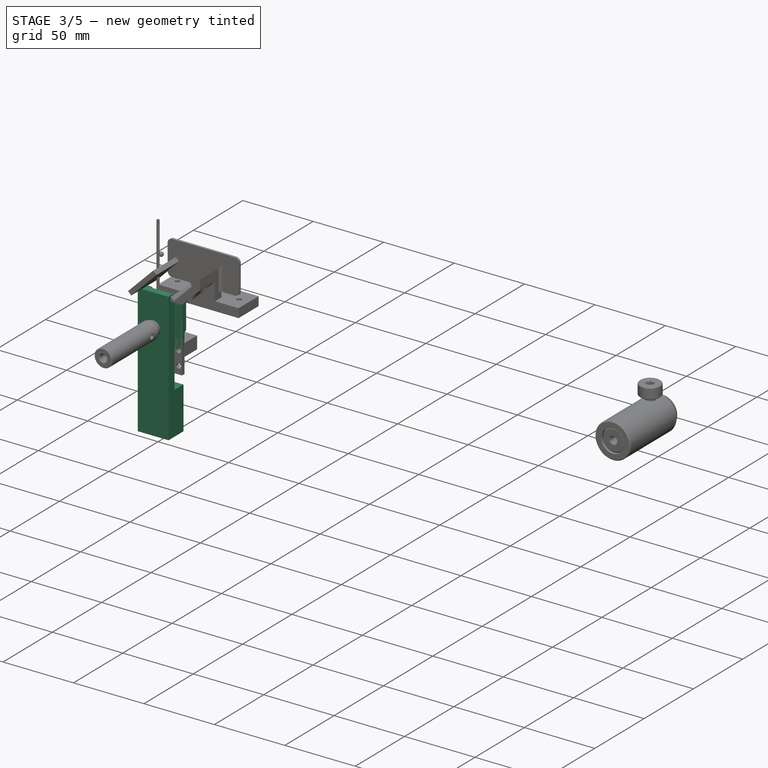
[diagram: stage 3 of 5 — iso view after this stage's code; geometry added in this stage tinted green]
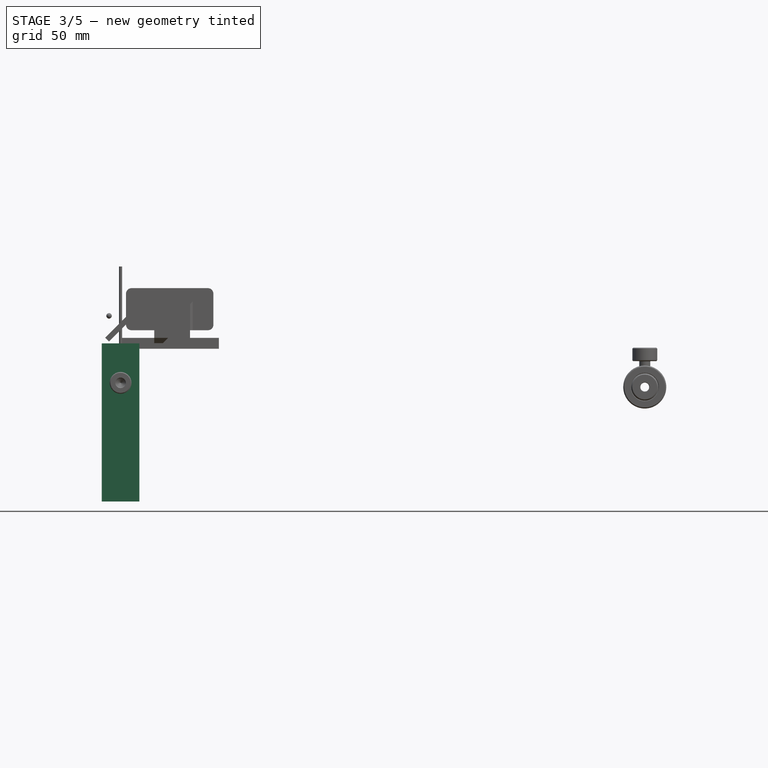
[diagram: stage 3 of 5 — front view after this stage's code; geometry added in this stage tinted green]
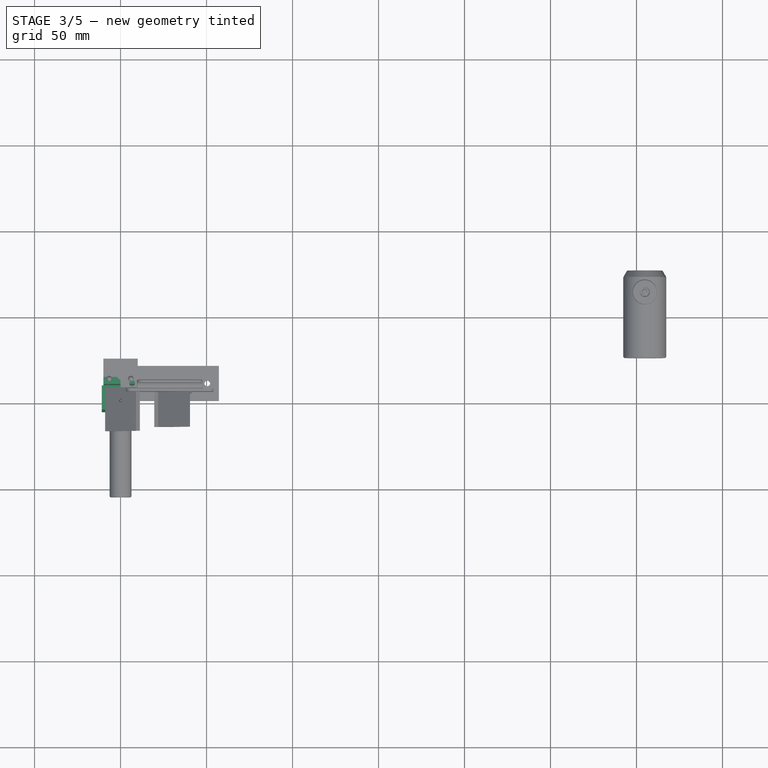
[diagram: stage 3 of 5 — top view after this stage's code; geometry added in this stage tinted green]
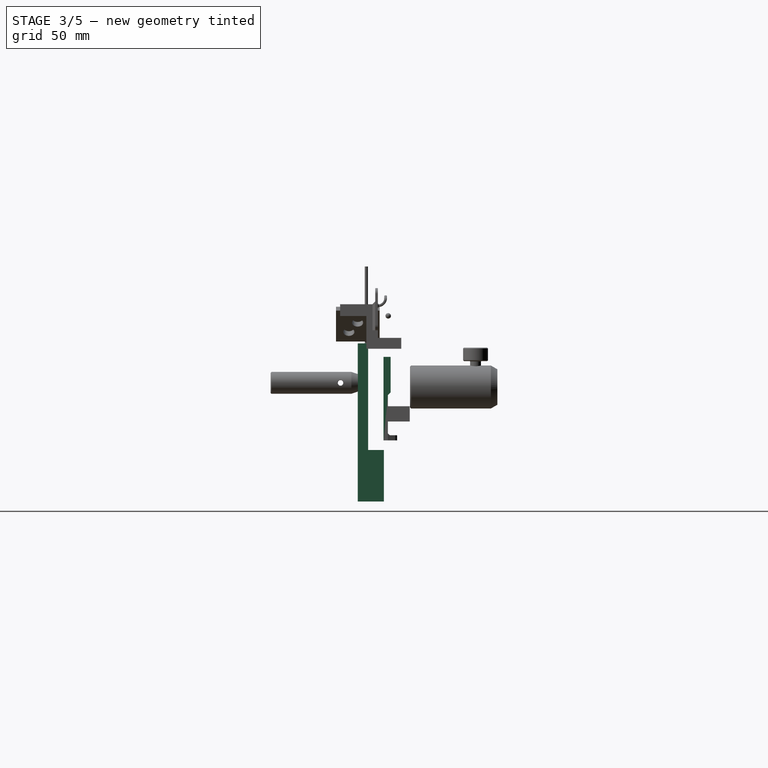
[diagram: stage 3 of 5 — right view after this stage's code; geometry added in this stage tinted green]
FEATURE [PartDesign::Body] Body002  label="Linear actuator dynamic mount"
  Group = -> [Sketch036,Pad003,Sketch050,Sketch051,Pad011,Pad012]
  Origin = -> Origin011
  Tip = -> Pad012
FEATURE [Part::Feature] Part__Feature016013006  label="Carriage - 8438K004"
  Placement = pos=(0,0,-45.9996) rot=(0,0,1;0rad)
  shape: bbox 20 x 8.001 x 30 mm, 186 faces (baked)
  expr: .Placement.Base.z = -0.6492" + 0.0586656" - 31mm
FEATURE [Part::Feature] Part__Feature016013007  label="LM0830 rod X001"
  Placement = pos=(0,15.875,-114.3) rot=(0,1,0;0rad)
  shape: bbox 4.33 x 4.33 x 58 mm, 11 faces (baked)
  expr: .Placement.Base.y = <<ss001>>.offAxis_LM0830
FEATURE [Part::Feature] Part__Feature016013008  label="LM0830 X001"
  Placement = pos=(-1.1e-14,15.875,-60.5) rot=(0,0,1;1.5708rad)
  shape: bbox 32.3 x 8 x 33 mm, 102 faces, 2 solids (baked)
  expr: .Placement.Base.y = <<ss001>>.offAxis_LM0830
  expr: .Placement.Base.z = -2.375" - 6.8897thou
FEATURE [Spreadsheet::Sheet] Spreadsheet001  label="ss001"
  cells = A2=LM0830 X coord; B2(motorX)==16.5mm + 29mm - 7.5mm + B7 * D7; C2=Cross shaft mount X; D2(crossShaftMountX)==(B7 - 0.5) * D7; E2=CrosslinkerX; F2(crosslinkerX)==(B7 - 0.5) * D7; G2=CarriageX; H2(carriageX)==-27.5mm + B7 * D7; I2=magnetX; J2(magnetX)==(B7 - 0.5) * D7; A3=LM0830 Y coord; B3(motorY)==-16.5mm + 29mm - 7.5mm + B8 * D7; C3=Cross shaft mount Y; D3(crossShaftMountY)==(B8 - 0.5) * D7; E3=CrosslinkerY; F3(crosslinkerY)==(B8 - 0.5) * D7; G3=CarriageY; H3(carriageY)==F7 + (B8 - 0.5) * D7; I3=magnetY; J3(magnetY)==(B8 - 0.5) * D7; A7=LM0830 X frac; B7=1; C7=LM0830 stroke; D7==15mm; E7=LM0830 shaft length; F7(shaftLength)==58mm; A8=LM0830 Y frac; B8=1; A11=Bushing coupler thickness; B11(BushingCouplerThickness)==2mm; A12=Cross shaft mount thickness; B12(crossShaftMountThickness)==2mm; A14=Hole tolerance frac; B14(holeToleranceFrac)=1.01; A16=Cage thickness; B16(cageThickness)==6mm; A17=Cage height; B17(cageHeight)==28mm; A19=Fit tolerance; B19(tolerance)==0.2mm; A21=Static mount length; B21(Lstatic)==3.3937" + 0.2283"; A22=LM0830 width; B22(W_LM0830)==0.315"; A23=LM0830 axis offset; B23(offAxis_LM0830)==0.625"; A24=LM0830 length; B24(L_LM0830)==1.1811"
FEATURE [Sketcher::SketchObject] Sketch055  label="Carriage cutaway002"
  FullyConstrained = false
  MapMode = 5
  Placement = pos=(-10.922,-0.0263528,0) rot=(0.576422,0.577814,-0.577814;4.1874rad)
  expr: Constraints[10] = 80mm - 0.7087"
  expr: Constraints[8] = 1mm
  expr: Constraints[9] = 10mm + 0.125" + 0.125"
  sketch-geometry (4):
    g0: LineSegment StartX=1 StartY=61.999 StartZ=0 EndX=16.35 EndY=61.999 EndZ=0
    g1: LineSegment StartX=16.35 StartY=61.999 StartZ=0 EndX=16.35 EndY=0 EndZ=0
    g2: LineSegment StartX=16.35 StartY=0 StartZ=0 EndX=1 EndY=0 EndZ=0
    g3: LineSegment StartX=1 StartY=0 StartZ=0 EndX=1 EndY=61.999 EndZ=0
  constraints (12):
    c: Coincident(g0,g1)
    c: Coincident(g1,g2)
    c: Coincident(g2,g3)
    c: Coincident(g3,g0)
    c: Horizontal(g0)
    c: Horizontal(g2)
    c: Vertical(g1)
    c: Vertical(g3)
    c: DistanceX(g2) = 1
    c: DistanceX(g1) = 16.35
    c: DistanceY(g0) = 61.999
    c: DistanceY(g2) = 0
FEATURE [Sketcher::SketchObject] Sketch056  label="Main profile002"
  FullyConstrained = false
  Placement = pos=(0,0,0) rot=(0.999999,0.001206,0;3.14159rad)
  sketch-geometry (48):
    g0: LineSegment StartX=-10.922 StartY=4.9657 StartZ=0 EndX=10.922 EndY=4.9657 EndZ=0
    g1: LineSegment StartX=10.922 StartY=4.9657 StartZ=0 EndX=10.922 EndY=-10.16 EndZ=0
    g2: LineSegment StartX=10.922 StartY=-10.16 StartZ=0 EndX=-10.922 EndY=-10.16 EndZ=0
    g3: LineSegment StartX=-10.922 StartY=-10.16 StartZ=0 EndX=-10.922 EndY=4.9657 EndZ=0
    g4: ArcOfCircle CenterX=2.5 CenterY=0.3 CenterZ=0 NormalX=0 NormalY=0 NormalZ=1 AngleXU=-1e-16 Radius=0.2968 StartAngle=3.78509 EndAngle=5.63968
    g5: ArcOfCircle CenterX=2.1 CenterY=-2.32e-13 CenterZ=0 NormalX=0 NormalY=0 NormalZ=1 AngleXU=-0.927295 Radius=0.2032 StartAngle=1.5708 EndAngle=2.49809
    g6: LineSegment StartX=-4 StartY=0.2032 StartZ=0 EndX=2.1 EndY=0.2032 EndZ=0
    g7: ArcOfCircle CenterX=-4 CenterY=-2.313e-13 CenterZ=0 NormalX=0 NormalY=0 NormalZ=1 AngleXU=-1e-16 Radius=0.2032 StartAngle=1.5708 EndAngle=2.35619
    g8: LineSegment StartX=-4.64368 StartY=-0.356316 StartZ=0 EndX=-4.14368 EndY=0.143684 EndZ=0
    g9: ArcOfCircle CenterX=-4.5 CenterY=-0.5 CenterZ=0 NormalX=0 NormalY=0 NormalZ=1 AngleXU=0.785398 Radius=0.2032 StartAngle=1.5708 EndAngle=2.35619
    g10: LineSegment StartX=-4.7032 StartY=-3.22437 StartZ=0 EndX=-4.7032 EndY=-0.5 EndZ=0
    g11: ArcOfCircle CenterX=-4.5 CenterY=-3.22437 CenterZ=0 NormalX=0 NormalY=0 NormalZ=1 AngleXU=1.5708 Radius=0.2032 StartAngle=1.5708 EndAngle=2.95056
    g12: ArcOfCircle CenterX=-4.65 CenterY=-4 CenterZ=0 NormalX=0 NormalY=0 NormalZ=1 AngleXU=3.14159 Radius=0.5868 StartAngle=3.67105 EndAngle=4.52136
    g13: ArcOfCircle CenterX=-3.96816 CenterY=-3.601 CenterZ=0 NormalX=0 NormalY=0 NormalZ=1 AngleXU=2.10025 Radius=0.2032 StartAngle=1.5708 EndAngle=2.4376
    g14: LineSegment StartX=-3.61313 StartY=-3.86994 StartZ=0 EndX=-4.00345 EndY=-3.80111 EndZ=0
    g15: ArcOfCircle CenterX=-3.75939 CenterY=-4.00161 CenterZ=0 NormalX=0 NormalY=0 NormalZ=1 AngleXU=3.14159 Radius=0.1968 StartAngle=3.79562 EndAngle=3.87457
    g16: LineSegment StartX=-3.6032 StartY=-4.11812 StartZ=0 EndX=-3.6032 EndY=-3.88188 EndZ=0
    g17: ArcOfCircle CenterX=-3.75939 CenterY=-3.99839 CenterZ=0 NormalX=0 NormalY=0 NormalZ=1 AngleXU=3.14159 Radius=0.1968 StartAngle=2.40862 EndAngle=2.48757
    g18: LineSegment StartX=-4.00345 StartY=-4.19889 StartZ=0 EndX=-3.61313 EndY=-4.13006 EndZ=0
    g19: ArcOfCircle CenterX=-3.96816 CenterY=-4.399 CenterZ=0 NormalX=0 NormalY=0 NormalZ=1 AngleXU=0.174533 Radius=0.2032 StartAngle=1.5708 EndAngle=2.4376
    g20: ArcOfCircle CenterX=-4.65 CenterY=-4 CenterZ=0 NormalX=0 NormalY=0 NormalZ=1 AngleXU=3.14159 Radius=0.5868 StartAngle=1.76183 EndAngle=2.61214
    g21: ArcOfCircle CenterX=-4.5 CenterY=-4.77563 CenterZ=0 NormalX=0 NormalY=0 NormalZ=1 AngleXU=0.191033 Radius=0.2032 StartAngle=1.5708 EndAngle=2.95056
    g22: LineSegment StartX=-4.7032 StartY=-5.5 StartZ=0 EndX=-4.7032 EndY=-4.77563 EndZ=0
    g23: ArcOfCircle CenterX=-4.5 CenterY=-5.5 CenterZ=0 NormalX=0 NormalY=0 NormalZ=1 AngleXU=1.5708 Radius=0.2032 StartAngle=1.5708 EndAngle=1.91964
    g24: ArcOfCircle CenterX=-3.56023 CenterY=-5.15819 CenterZ=0 NormalX=0 NormalY=0 NormalZ=1 AngleXU=-1e-16 Radius=1.2032 StartAngle=3.49044 EndAngle=4.14223
    g25: ArcOfCircle CenterX=-4.1 CenterY=-6 CenterZ=0 NormalX=0 NormalY=0 NormalZ=1 AngleXU=2.57143 Radius=0.2032 StartAngle=1.5708 EndAngle=2.14096
    g26: LineSegment StartX=4.1 StartY=-6.2032 StartZ=0 EndX=-4.1 EndY=-6.2032 EndZ=0
    g27: ArcOfCircle CenterX=4.1 CenterY=-6 CenterZ=0 NormalX=0 NormalY=0 NormalZ=1 AngleXU=3.14159 Radius=0.2032 StartAngle=1.5708 EndAngle=2.14096
    g28: ArcOfCircle CenterX=3.56023 CenterY=-5.15819 CenterZ=0 NormalX=0 NormalY=0 NormalZ=1 AngleXU=-1e-16 Radius=1.2032 StartAngle=5.28255 EndAngle=5.93434
    g29: ArcOfCircle CenterX=4.5 CenterY=-5.5 CenterZ=0 NormalX=0 NormalY=0 NormalZ=1 AngleXU=-1.91964 Radius=0.2032 StartAngle=1.5708 EndAngle=1.91964
    g30: LineSegment StartX=4.7032 StartY=-4.77563 StartZ=0 EndX=4.7032 EndY=-5.5 EndZ=0
    g31: ArcOfCircle CenterX=4.5 CenterY=-4.77563 CenterZ=0 NormalX=0 NormalY=0 NormalZ=1 AngleXU=-1.5708 Radius=0.2032 StartAngle=1.5708 EndAngle=2.95056
    g32: ArcOfCircle CenterX=4.65 CenterY=-4 CenterZ=0 NormalX=0 NormalY=0 NormalZ=1 AngleXU=3.14159 Radius=0.5868 StartAngle=0.529455 EndAngle=1.37976
    g33: ArcOfCircle CenterX=3.96816 CenterY=-4.399 CenterZ=0 NormalX=0 NormalY=0 NormalZ=1 AngleXU=-1.04134 Radius=0.2032 StartAngle=1.5708 EndAngle=2.4376
    g34: LineSegment StartX=3.61313 StartY=-4.13006 StartZ=0 EndX=4.00345 EndY=-4.19889 EndZ=0
    g35: ArcOfCircle CenterX=3.75939 CenterY=-3.99839 CenterZ=0 NormalX=0 NormalY=0 NormalZ=1 AngleXU=3.14159 Radius=0.1968 StartAngle=0.654027 EndAngle=0.732978
    g36: LineSegment StartX=3.6032 StartY=-3.88188 StartZ=0 EndX=3.6032 EndY=-4.11812 EndZ=0
    g37: ArcOfCircle CenterX=3.75939 CenterY=-4.00161 CenterZ=0 NormalX=0 NormalY=0 NormalZ=1 AngleXU=3.14159 Radius=0.1968 StartAngle=5.55021 EndAngle=5.62916
    g38: LineSegment StartX=4.00345 StartY=-3.80111 StartZ=0 EndX=3.61313 EndY=-3.86994 EndZ=0
    g39: ArcOfCircle CenterX=3.96816 CenterY=-3.601 CenterZ=0 NormalX=0 NormalY=0 NormalZ=1 AngleXU=-2.96706 Radius=0.2032 StartAngle=1.5708 EndAngle=2.4376
    g40: ArcOfCircle CenterX=4.65 CenterY=-4 CenterZ=0 NormalX=0 NormalY=0 NormalZ=1 AngleXU=3.14159 Radius=0.5868 StartAngle=4.90342 EndAngle=5.75373
    g41: ArcOfCircle CenterX=4.5 CenterY=-3.22437 CenterZ=0 NormalX=0 NormalY=0 NormalZ=1 AngleXU=-2.95056 Radius=0.2032 StartAngle=1.5708 EndAngle=2.95056
    g42: LineSegment StartX=4.7032 StartY=-0.5 StartZ=0 EndX=4.7032 EndY=-3.22437 EndZ=0
    g43: ArcOfCircle CenterX=4.5 CenterY=-0.5 CenterZ=0 NormalX=0 NormalY=0 NormalZ=1 AngleXU=-1.5708 Radius=0.2032 StartAngle=1.5708 EndAngle=2.35619
    g44: LineSegment StartX=4.14368 StartY=0.143684 StartZ=0 EndX=4.64368 EndY=-0.356316 EndZ=0
    g45: ArcOfCircle CenterX=4 CenterY=-2.323e-13 CenterZ=0 NormalX=0 NormalY=0 NormalZ=1 AngleXU=-0.785398 Radius=0.2032 StartAngle=1.5708 EndAngle=2.35619
    g46: LineSegment StartX=2.9 StartY=0.2032 StartZ=0 EndX=4 EndY=0.2032 EndZ=0
    g47: ArcOfCircle CenterX=2.9 CenterY=-2.322e-13 CenterZ=0 NormalX=0 NormalY=0 NormalZ=1 AngleXU=-1e-16 Radius=0.2032 StartAngle=1.5708 EndAngle=2.49809
  constraints (60):
    c: Coincident(g0,g1)
    c: Coincident(g1,g2)
    c: Coincident(g2,g3)
    c: Coincident(g3,g0)
    c: Horizontal(g2)
    c: Vertical(g1)
    c: Vertical(g3)
    c: Symmetric(g0,g0,g-2)
    c: DistanceX(g0,g0) = 21.844
    c: Coincident(g4,g5)
    c: Coincident(g5,g6)
    c: Coincident(g6,g7)
    c: Coincident(g7,g8)
    c: Coincident(g8,g9)
    c: Coincident(g9,g10)
    c: Vertical(g10)
    c: Coincident(g10,g11)
    c: Coincident(g11,g12)
    c: Coincident(g12,g13)
    c: Coincident(g13,g14)
    c: Coincident(g14,g15)
    c: Coincident(g15,g16)
    c: Vertical(g16)
    c: Coincident(g16,g17)
    c: Coincident(g17,g18)
    c: Coincident(g18,g19)
    c: Coincident(g19,g20)
    c: Coincident(g20,g21)
    c: Coincident(g21,g22)
    c: Vertical(g22)
    c: Coincident(g22,g23)
    c: Coincident(g23,g24)
    c: Coincident(g24,g25)
    c: Coincident(g25,g26)
    c: Coincident(g26,g27)
    c: Coincident(g27,g28)
    c: Coincident(g28,g29)
    c: Coincident(g29,g30)
    c: Vertical(g30)
    c: Coincident(g30,g31)
    c: Coincident(g31,g32)
    c: Coincident(g32,g33)
    c: Coincident(g33,g34)
    c: Coincident(g34,g35)
    c: Coincident(g35,g36)
    c: Vertical(g36)
    c: Coincident(g36,g37)
    c: Coincident(g37,g38)
    c: Coincident(g38,g39)
    c: Coincident(g39,g40)
    c: Coincident(g40,g41)
    c: Coincident(g41,g42)
    c: Vertical(g42)
    c: Coincident(g42,g43)
    c: Coincident(g43,g44)
    c: Coincident(g44,g45)
    c: Coincident(g45,g46)
    c: Coincident(g46,g47)
    c: Coincident(g47,g4)
    c: DistanceY(g2) = -10.16
FEATURE [PartDesign::Pad] Pad014
  AllowMultiFace = false
  Direction = (1,1,1)
  Length = 91.9988
  Length2 = 99.9998
  Placement = pos=(0,0,0) rot=(0.999999,0.001206,0;3.14159rad)
  Profile = -> Sketch056
  Type = 0
  expr: Length = <<ss001>>.Lstatic
FEATURE [PartDesign::Pocket] Pocket001003
  AllowMultiFace = false
  BaseFeature = -> Pad014
  Direction = (1,1,1)
  Length = 5.00126
  Length2 = 99.9998
  Placement = pos=(0,0,0) rot=(0.999999,0.001206,0;3.14159rad)
  Profile = -> Sketch055
  Type = 1
FEATURE [PartDesign::Body] Body006  label="Linear actuator static mount001"
  Group = -> [Sketch053,Sketch054,Sketch055,Sketch056,Pad014,Pocket001003,Pocket001004,Pocket001005,Sketch057,Pad015,Sketch058,Pocket001006,Chamfer004]
  Origin = -> Origin020
  Tip = -> Chamfer004
FEATURE [Sketcher::SketchObject] Sketch061  label="Spout mount main profile004"
  FullyConstrained = false
  MapMode = 5
  Placement = pos=(0,10,-45.9996) rot=(0,0.707107,0.707107;3.14159rad)
  expr: Constraints[10] = 3.4mm / 2
  expr: Constraints[14] = 15mm
  expr: Constraints[16] = 10mm
  expr: Constraints[17] = 5.4mm
  sketch-geometry (8):
    g0: LineSegment StartX=-9.99998 StartY=38.1 StartZ=0 EndX=9.99998 EndY=38.1 EndZ=0
    g1: LineSegment StartX=9.99998 StartY=38.1 StartZ=0 EndX=9.99998 EndY=-10.3988 EndZ=0
    g2: LineSegment StartX=9.99998 StartY=-10.3988 StartZ=0 EndX=-9.99998 EndY=-10.3988 EndZ=0
    g3: LineSegment StartX=-9.99998 StartY=-10.3988 StartZ=0 EndX=-9.99998 EndY=38.1 EndZ=0
    g4: Circle CenterX=-7.5 CenterY=5.00124 CenterZ=0 NormalX=0 NormalY=0 NormalZ=1 AngleXU=0 Radius=1.7
    g5: Circle CenterX=-7.5 CenterY=-4.99876 CenterZ=0 NormalX=0 NormalY=0 NormalZ=1 AngleXU=0 Radius=1.7
    g6: Circle CenterX=7.5 CenterY=-4.99876 CenterZ=0 NormalX=0 NormalY=0 NormalZ=1 AngleXU=0 Radius=1.7
    g7: Circle CenterX=7.5 CenterY=5.00124 CenterZ=0 NormalX=0 NormalY=0 NormalZ=1 AngleXU=0 Radius=1.7
  constraints (21):
    c: Coincident(g0,g1)
    c: Coincident(g1,g2)
    c: Coincident(g2,g3)
    c: Coincident(g3,g0)
    c: Horizontal(g2)
    c: Vertical(g1)
    c: Vertical(g3)
    c: DistanceX(g0,g0) = 20
    c: Symmetric(g0,g0,g-2)
    c: DistanceY(g2) = -10.3988
    c: Radius(g4) = 1.7
    c: Equal(g4,g5) = 1.7
    c: Symmetric(g4,g7,g-2)
    c: Symmetric(g5,g6,g-2)
    c: DistanceX(g5,g6) = 15
    c: DistanceX(g5,g4) = 0
    c: DistanceY(g5,g4) = 10
    c: DistanceY(g2,g5) = 5.4
    c: Equal(g4,g7)
    c: Equal(g7,g6)
    c: DistanceY(g0) = 38.1
FEATURE [PartDesign::Pad] Pad018
  AllowMultiFace = false
  Direction = (1,1,1)
  Length = 2.54
  Length2 = 99.9998
  Placement = pos=(0,10,-45.9996) rot=(0,0.707107,0.707107;3.14159rad)
  Profile = -> Sketch061
  Type = 0
FEATURE [Sketcher::SketchObject] Sketch038  label="Tube thickness"
  FullyConstrained = false
  MapMode = 5
  Placement = pos=(0,12.54,-45.9996) rot=(0,0.707107,0.707107;3.14159rad)
  Support = -> [Pad018]
  expr: Constraints[8] = 20mm
  sketch-geometry (4):
    g0: LineSegment StartX=-10 StartY=38.1 StartZ=0 EndX=10 EndY=38.1 EndZ=0
    g1: LineSegment StartX=10 StartY=38.1 StartZ=0 EndX=10 EndY=15.875 EndZ=0
    g2: LineSegment StartX=10 StartY=15.875 StartZ=0 EndX=-10 EndY=15.875 EndZ=0
    g3: LineSegment StartX=-10 StartY=15.875 StartZ=0 EndX=-10 EndY=38.1 EndZ=0
  constraints (11):
    c: Coincident(g0,g1)
    c: Coincident(g1,g2)
    c: Coincident(g2,g3)
    c: Coincident(g3,g0)
    c: Horizontal(g2)
    c: Vertical(g1)
    c: Vertical(g3)
    c: DistanceY(g0) = 38.1
    c: DistanceX(g0,g0) = 20
    c: Symmetric(g0,g0,g-2)
    c: DistanceY(g3,g3) = 22.225
FEATURE [PartDesign::Pad] Pad004
  AllowMultiFace = false
  BaseFeature = -> Pad018
  Direction = (1,1,1)
  Length = 1.5875
  Length2 = 99.9998
  Placement = pos=(0,10,-45.9996) rot=(0,0.707107,0.707107;3.14159rad)
  Profile = -> Sketch038
  Type = 0
  expr: Length = 0.125" / 2
FEATURE [Sketcher::SketchObject] Sketch040  label="Spout groove"
  FullyConstrained = false
  MapMode = 5
  Placement = pos=(3.4e-15,10,-7.89957) rot=(0,0,1;0rad)
  Support = -> [Pad004]
  expr: Constraints[6] = 0.1" + 0.125" / 2
  sketch-geometry (3):
    g0: LineSegment StartX=-2.18486 StartY=4.1275 StartZ=0 EndX=-4e-16 EndY=1.94264 EndZ=0
    g1: LineSegment StartX=-4e-16 StartY=1.94264 StartZ=0 EndX=2.18486 EndY=4.1275 EndZ=0
    g2: LineSegment StartX=2.18486 StartY=4.1275 StartZ=0 EndX=-2.18486 EndY=4.1275 EndZ=0
  constraints (8):
    c: Coincident(g0,g1)
    c: Coincident(g1,g2)
    c: Coincident(g0,g2)
    c: Symmetric(g0,g1,g-2)
    c: Equal(g0,g1)
    c: Angle(g0,g-2) = 2.35619
    c: DistanceY(g0) = 4.1275
    c: DistanceY(g0,g1) = 2.18486
FEATURE [PartDesign::Pocket] Pocket005
  AllowMultiFace = false
  BaseFeature = -> Pad004
  Direction = (1,1,1)
  Length = 12.7
  Length2 = 99.9998
  Placement = pos=(0,10,-45.9996) rot=(0,0.707107,0.707107;3.14159rad)
  Profile = -> Sketch040
  Type = 0
FEATURE [Sketcher::SketchObject] Sketch037  label="Tube groove"
  FullyConstrained = false
  MapMode = 5
  Placement = pos=(0,10,-20.5996) rot=(0,0,1;0rad)
  Support = -> [Pocket005]
  expr: Constraints[6] = 0.16" + 0.0060182" * 2
  expr: Constraints[7] = 1.81mm / 2
  expr: Constraints[9] = 0.125" / 2 + 0.1"
  sketch-geometry (4):
    g0: LineSegment StartX=-2.18486 StartY=3.2225 StartZ=0 EndX=-2.18486 EndY=4.1275 EndZ=0
    g1: LineSegment StartX=-2.18486 StartY=4.1275 StartZ=0 EndX=2.18486 EndY=4.1275 EndZ=0
    g2: LineSegment StartX=2.18486 StartY=4.1275 StartZ=0 EndX=2.18486 EndY=3.2225 EndZ=0
    g3: ArcOfCircle CenterX=1.6e-15 CenterY=3.2225 CenterZ=0 NormalX=0 NormalY=0 NormalZ=1 AngleXU=0 Radius=2.18486 StartAngle=3.14159 EndAngle=6.28319
  constraints (10):
    c: Coincident(g0,g1)
    c: Coincident(g1,g2)
    c: DistanceY(g0,g3) = 0
    c: Vertical(g2)
    c: Tangent(g0,g3) = 1.5708
    c: Tangent(g3,g2) = 1.5708
    c: DistanceX(g1,g1) = 4.36972
    c: DistanceY(g0,g0) = 0.905
    c: Symmetric(g0,g1,g-2)
    c: DistanceY(g0) = 4.1275
FEATURE [PartDesign::Pocket] Pocket006
  AllowMultiFace = false
  BaseFeature = -> Pocket005
  Direction = (1,1,1)
  Length = 9.525
  Length2 = 99.9998
  Placement = pos=(0,10,-45.9996) rot=(0,0.707107,0.707107;3.14159rad)
  Profile = -> Sketch037
  Type = 0
FEATURE [PartDesign::Chamfer] Chamfer
  Angle = 45
  Base = -> Pocket006 [Edge46]
  BaseFeature = -> Pocket006
  ChamferType = 0
  FlipDirection = false
  Placement = pos=(0,10,-45.9996) rot=(0,0.707107,0.707107;3.14159rad)
  Size = 1.4986
  Size2 = 1
  SupportTransform = false
  UseAllEdges = false
FEATURE [Sketcher::SketchObject] Sketch062  label="Rod mount002"
  FullyConstrained = false
  MapMode = 5
  Placement = pos=(-9e-16,10,-56.3983) rot=(0,1,0;3.14159rad)
  Support = -> [Chamfer]
  expr: Constraints[10] = 2mm
  expr: Constraints[16] = 1.8mm / 2
  expr: Constraints[9] = 0.2313"
  sketch-geometry (7):
    g0: LineSegment StartX=-3.175 StartY=2.54 StartZ=0 EndX=-3.175 EndY=0 EndZ=0
    g1: LineSegment StartX=-3.175 StartY=0 StartZ=0 EndX=3.175 EndY=0 EndZ=0
    g2: LineSegment StartX=3.175 StartY=0 StartZ=0 EndX=3.175 EndY=2.54 EndZ=0
    g3: LineSegment StartX=3.175 StartY=2.54 StartZ=0 EndX=1.90374 EndY=6.48802 EndZ=0
    g4: ArcOfCircle CenterX=1e-16 CenterY=5.87502 CenterZ=0 NormalX=0 NormalY=0 NormalZ=1 AngleXU=0 Radius=2 StartAngle=0.311515 EndAngle=2.83008
    g5: LineSegment StartX=-1.90374 StartY=6.48802 StartZ=0 EndX=-3.175 EndY=2.54 EndZ=0
    g6: Circle CenterX=1e-16 CenterY=5.87502 CenterZ=0 NormalX=0 NormalY=0 NormalZ=1 AngleXU=0 Radius=0.9
  constraints (17):
    c: Coincident(g0,g1)
    c: Coincident(g1,g2)
    c: Coincident(g2,g3)
    c: Coincident(g0,g5)
    c: Symmetric(g0,g2,g-2)
    c: Symmetric(g0,g1,g-2)
    c: Vertical(g0)
    c: DistanceY(g0) = 0
    c: DistanceY(g0) = 2.54
    c: DistanceY(g4) = 5.87502
    c: Radius(g4) = 2
    c: Symmetric(g4,g3,g-2)
    c: Tangent(g4,g5) = -1.5708
    c: Coincident(g3,g4)
    c: DistanceX(g1,g1) = 6.35
    c: Coincident(g4,g6)
    c: Radius(g6) = 0.9
FEATURE [PartDesign::Pad] Pad019
  AllowMultiFace = false
  BaseFeature = -> Chamfer
  Direction = (1,1,1)
  Length = 2.975
  Length2 = 99.9998
  Placement = pos=(0,10,-45.9996) rot=(0,0.707107,0.707107;3.14159rad)
  Profile = -> Sketch062
  Reversed = true
  Type = 0
  expr: Length = 0.125" - 0.2mm
FEATURE [PartDesign::Chamfer] Chamfer002  label="Chamfer003"
  Angle = 45
  Base = -> Pad019 [Edge8]
  BaseFeature = -> Pad019
  ChamferType = 0
  FlipDirection = false
  Placement = pos=(0,10,-45.9996) rot=(0,0.707107,0.707107;3.14159rad)
  Size = 1.016
  Size2 = 1
  SupportTransform = false
  UseAllEdges = false
FEATURE [PartDesign::Chamfer] Chamfer005  label="Chamfer006"
  Angle = 45
  Base = -> Chamfer002 [Edge56,Edge37]
  BaseFeature = -> Chamfer002
  ChamferType = 0
  FlipDirection = false
  Placement = pos=(0,10,-45.9996) rot=(0,0.707107,0.707107;3.14159rad)
  Size = 1.58496
  Size2 = 1
  SupportTransform = false
  UseAllEdges = false
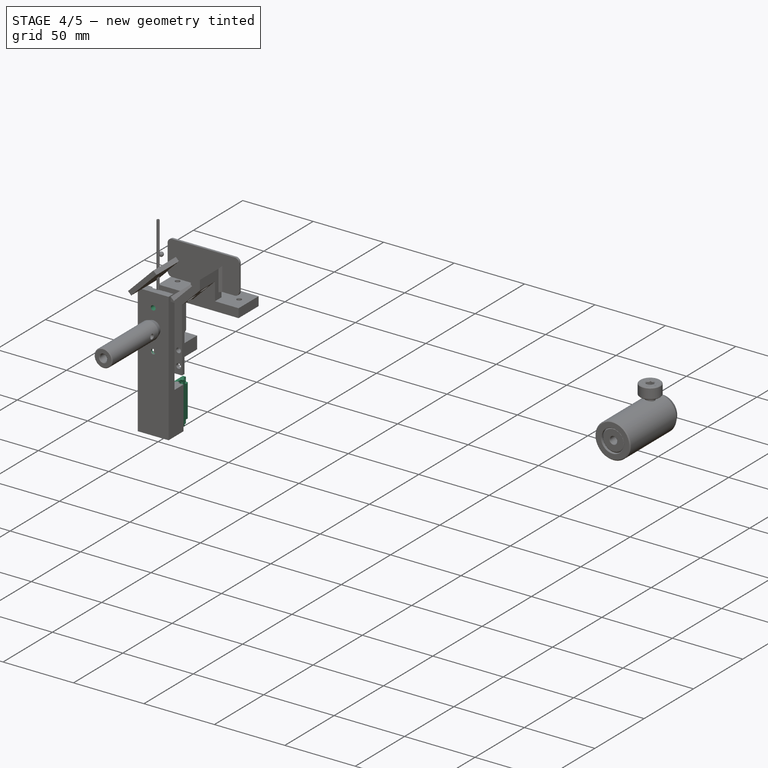
[diagram: stage 4 of 5 — iso view after this stage's code; geometry added in this stage tinted green]
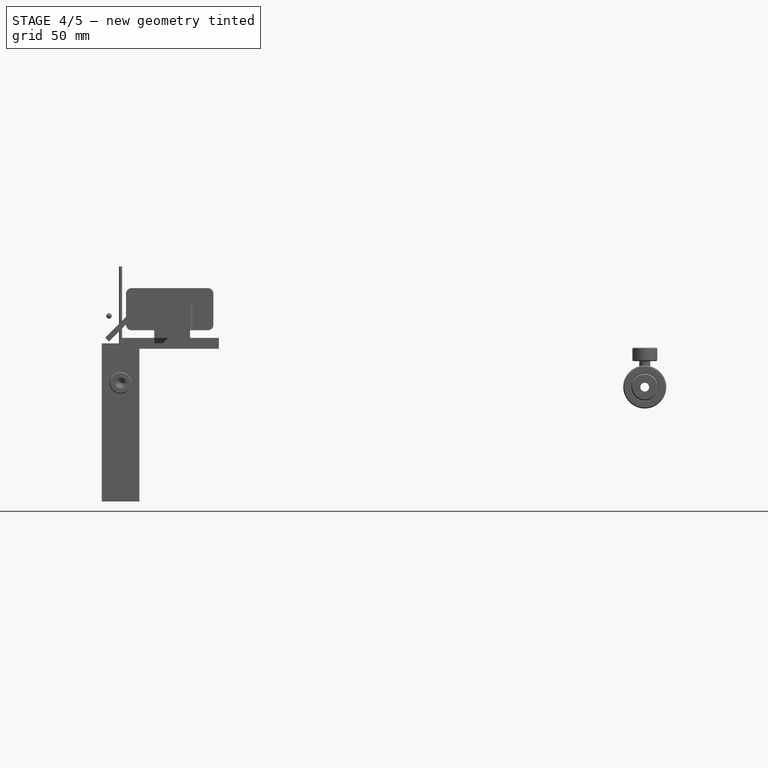
[diagram: stage 4 of 5 — front view after this stage's code; geometry added in this stage tinted green]
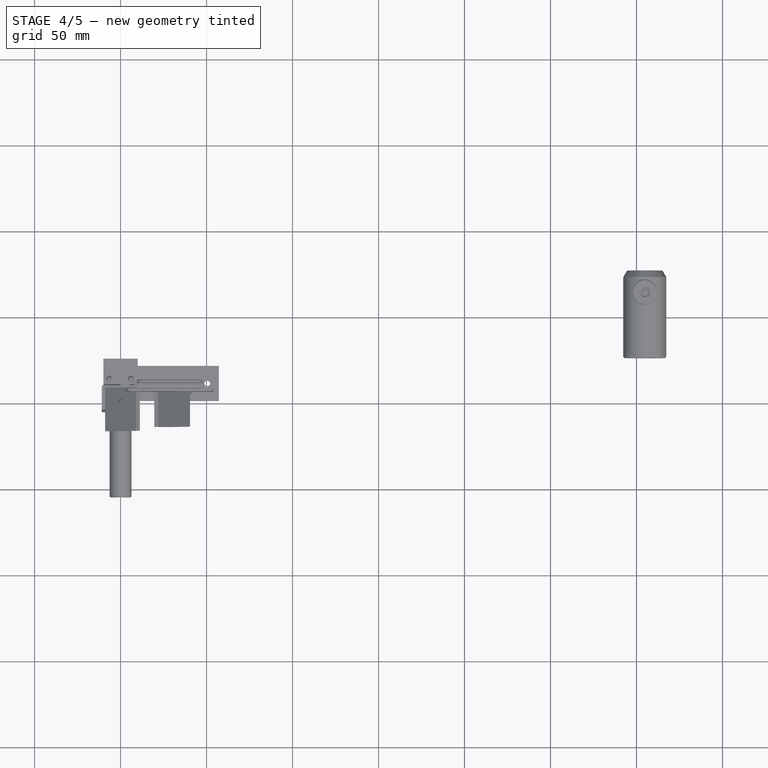
[diagram: stage 4 of 5 — top view after this stage's code; geometry added in this stage tinted green]
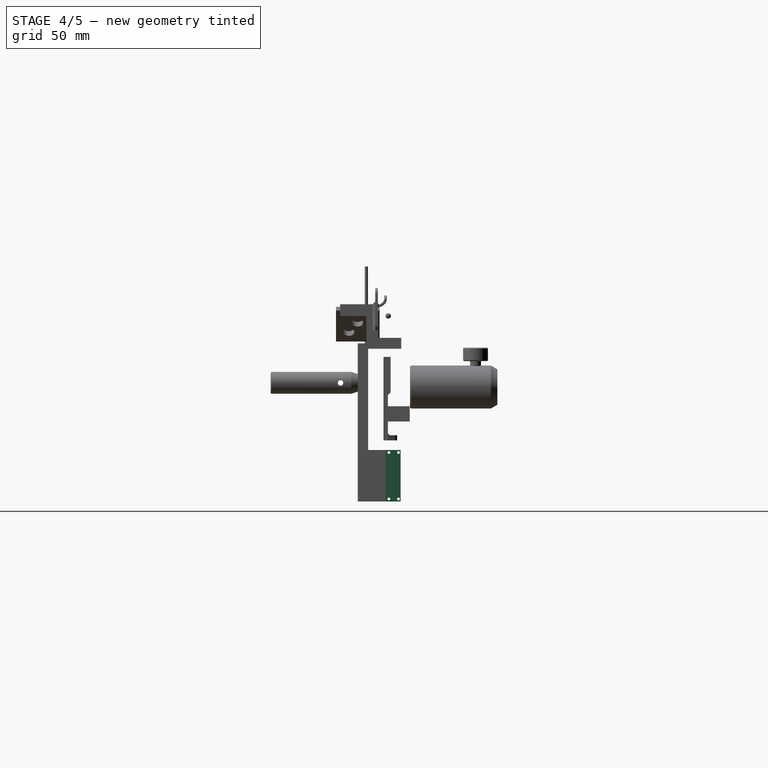
[diagram: stage 4 of 5 — right view after this stage's code; geometry added in this stage tinted green]
FEATURE [Part::Feature] Part__Feature016013003  label="LM0830 rod X"
  Placement = pos=(0,15.875,-114.425) rot=(0,1,0;0rad)
  shape: bbox 4.33 x 4.33 x 58 mm, 11 faces (baked)
  expr: .Placement.Base.y = <<ss>>.offAxis_LM0830
FEATURE [Part::Feature] Part__Feature016013004  label="LM0830 X"
  Placement = pos=(-1.1e-14,15.875,-60.5) rot=(0,0,1;1.5708rad)
  shape: bbox 32.3 x 8 x 33 mm, 102 faces, 2 solids (baked)
  expr: .Placement.Base.y = <<ss>>.offAxis_LM0830
  expr: .Placement.Base.z = -2.375" - 6.8897thou
FEATURE [Spreadsheet::Sheet] Spreadsheet  label="ss"
  cells = A2=LM0830 X coord; B2(motorX)==16.5mm + 29mm - 7.5mm + B7 * D7; C2=Cross shaft mount X; D2(crossShaftMountX)==(B7 - 0.5) * D7; E2=CrosslinkerX; F2(crosslinkerX)==(B7 - 0.5) * D7; G2=CarriageX; H2(carriageX)==-27.5mm + B7 * D7; I2=magnetX; J2(magnetX)==(B7 - 0.5) * D7; A3=LM0830 Y coord; B3(motorY)==-16.5mm + 29mm - 7.5mm + B8 * D7; C3=Cross shaft mount Y; D3(crossShaftMountY)==(B8 - 0.5) * D7; E3=CrosslinkerY; F3(crosslinkerY)==(B8 - 0.5) * D7; G3=CarriageY; H3(carriageY)==F7 + (B8 - 0.5) * D7; I3=magnetY; J3(magnetY)==(B8 - 0.5) * D7; A7=LM0830 X frac; B7=1; C7=LM0830 stroke; D7==15mm; E7=LM0830 shaft length; F7(shaftLength)==58mm; A8=LM0830 Y frac; B8=1; A11=Bushing coupler thickness; B11(BushingCouplerThickness)==2mm; A12=Cross shaft mount thickness; B12(crossShaftMountThickness)==2mm; A14=Hole tolerance frac; B14(holeToleranceFrac)=1.01; A16=Cage thickness; B16(cageThickness)==6mm; A17=Cage height; B17(cageHeight)==28mm; A19=Fit tolerance; B19(tolerance)==0.2mm; A21=Static mount length; B21(Lstatic)==3.3937" + 0.2283"; A22=LM0830 width; B22(W_LM0830)==0.315"; A23=LM0830 axis offset; B23(offAxis_LM0830)==0.625"; A24=LM0830 length; B24(L_LM0830)==1.1811"
FEATURE [Sketcher::SketchObject] Sketch046  label="Carriage cutaway001"
  FullyConstrained = false
  MapMode = 5
  Placement = pos=(-10.922,-0.0263528,0) rot=(0.576422,0.577814,-0.577814;4.1874rad)
  expr: Constraints[10] = 80mm - 0.7087"
  expr: Constraints[8] = 1mm
  expr: Constraints[9] = 10mm + 0.125" + 0.125"
  sketch-geometry (4):
    g0: LineSegment StartX=1 StartY=61.999 StartZ=0 EndX=16.35 EndY=61.999 EndZ=0
    g1: LineSegment StartX=16.35 StartY=61.999 StartZ=0 EndX=16.35 EndY=0 EndZ=0
    g2: LineSegment StartX=16.35 StartY=0 StartZ=0 EndX=1 EndY=0 EndZ=0
    g3: LineSegment StartX=1 StartY=0 StartZ=0 EndX=1 EndY=61.999 EndZ=0
  constraints (12):
    c: Coincident(g0,g1)
    c: Coincident(g1,g2)
    c: Coincident(g2,g3)
    c: Coincident(g3,g0)
    c: Horizontal(g0)
    c: Horizontal(g2)
    c: Vertical(g1)
    c: Vertical(g3)
    c: DistanceX(g2) = 1
    c: DistanceX(g1) = 16.35
    c: DistanceY(g0) = 61.999
    c: DistanceY(g2) = 0
FEATURE [Sketcher::SketchObject] Sketch047  label="Main profile001"
  FullyConstrained = false
  Placement = pos=(0,0,0) rot=(0.999999,0.001206,0;3.14159rad)
  sketch-geometry (48):
    g0: LineSegment StartX=-10.922 StartY=4.9657 StartZ=0 EndX=10.922 EndY=4.9657 EndZ=0
    g1: LineSegment StartX=10.922 StartY=4.9657 StartZ=0 EndX=10.922 EndY=-10.16 EndZ=0
    g2: LineSegment StartX=10.922 StartY=-10.16 StartZ=0 EndX=-10.922 EndY=-10.16 EndZ=0
    g3: LineSegment StartX=-10.922 StartY=-10.16 StartZ=0 EndX=-10.922 EndY=4.9657 EndZ=0
    g4: ArcOfCircle CenterX=2.5 CenterY=0.3 CenterZ=0 NormalX=0 NormalY=0 NormalZ=1 AngleXU=-1e-16 Radius=0.2968 StartAngle=3.78509 EndAngle=5.63968
    g5: ArcOfCircle CenterX=2.1 CenterY=-2.32e-13 CenterZ=0 NormalX=0 NormalY=0 NormalZ=1 AngleXU=-0.927295 Radius=0.2032 StartAngle=1.5708 EndAngle=2.49809
    g6: LineSegment StartX=-4 StartY=0.2032 StartZ=0 EndX=2.1 EndY=0.2032 EndZ=0
    g7: ArcOfCircle CenterX=-4 CenterY=-2.313e-13 CenterZ=0 NormalX=0 NormalY=0 NormalZ=1 AngleXU=-1e-16 Radius=0.2032 StartAngle=1.5708 EndAngle=2.35619
    g8: LineSegment StartX=-4.64368 StartY=-0.356316 StartZ=0 EndX=-4.14368 EndY=0.143684 EndZ=0
    g9: ArcOfCircle CenterX=-4.5 CenterY=-0.5 CenterZ=0 NormalX=0 NormalY=0 NormalZ=1 AngleXU=0.785398 Radius=0.2032 StartAngle=1.5708 EndAngle=2.35619
    g10: LineSegment StartX=-4.7032 StartY=-3.22437 StartZ=0 EndX=-4.7032 EndY=-0.5 EndZ=0
    g11: ArcOfCircle CenterX=-4.5 CenterY=-3.22437 CenterZ=0 NormalX=0 NormalY=0 NormalZ=1 AngleXU=1.5708 Radius=0.2032 StartAngle=1.5708 EndAngle=2.95056
    g12: ArcOfCircle CenterX=-4.65 CenterY=-4 CenterZ=0 NormalX=0 NormalY=0 NormalZ=1 AngleXU=3.14159 Radius=0.5868 StartAngle=3.67105 EndAngle=4.52136
    g13: ArcOfCircle CenterX=-3.96816 CenterY=-3.601 CenterZ=0 NormalX=0 NormalY=0 NormalZ=1 AngleXU=2.10025 Radius=0.2032 StartAngle=1.5708 EndAngle=2.4376
    g14: LineSegment StartX=-3.61313 StartY=-3.86994 StartZ=0 EndX=-4.00345 EndY=-3.80111 EndZ=0
    g15: ArcOfCircle CenterX=-3.75939 CenterY=-4.00161 CenterZ=0 NormalX=0 NormalY=0 NormalZ=1 AngleXU=3.14159 Radius=0.1968 StartAngle=3.79562 EndAngle=3.87457
    g16: LineSegment StartX=-3.6032 StartY=-4.11812 StartZ=0 EndX=-3.6032 EndY=-3.88188 EndZ=0
    g17: ArcOfCircle CenterX=-3.75939 CenterY=-3.99839 CenterZ=0 NormalX=0 NormalY=0 NormalZ=1 AngleXU=3.14159 Radius=0.1968 StartAngle=2.40862 EndAngle=2.48757
    g18: LineSegment StartX=-4.00345 StartY=-4.19889 StartZ=0 EndX=-3.61313 EndY=-4.13006 EndZ=0
    g19: ArcOfCircle CenterX=-3.96816 CenterY=-4.399 CenterZ=0 NormalX=0 NormalY=0 NormalZ=1 AngleXU=0.174533 Radius=0.2032 StartAngle=1.5708 EndAngle=2.4376
    g20: ArcOfCircle CenterX=-4.65 CenterY=-4 CenterZ=0 NormalX=0 NormalY=0 NormalZ=1 AngleXU=3.14159 Radius=0.5868 StartAngle=1.76183 EndAngle=2.61214
    g21: ArcOfCircle CenterX=-4.5 CenterY=-4.77563 CenterZ=0 NormalX=0 NormalY=0 NormalZ=1 AngleXU=0.191033 Radius=0.2032 StartAngle=1.5708 EndAngle=2.95056
    g22: LineSegment StartX=-4.7032 StartY=-5.5 StartZ=0 EndX=-4.7032 EndY=-4.77563 EndZ=0
    g23: ArcOfCircle CenterX=-4.5 CenterY=-5.5 CenterZ=0 NormalX=0 NormalY=0 NormalZ=1 AngleXU=1.5708 Radius=0.2032 StartAngle=1.5708 EndAngle=1.91964
    g24: ArcOfCircle CenterX=-3.56023 CenterY=-5.15819 CenterZ=0 NormalX=0 NormalY=0 NormalZ=1 AngleXU=-1e-16 Radius=1.2032 StartAngle=3.49044 EndAngle=4.14223
    g25: ArcOfCircle CenterX=-4.1 CenterY=-6 CenterZ=0 NormalX=0 NormalY=0 NormalZ=1 AngleXU=2.57143 Radius=0.2032 StartAngle=1.5708 EndAngle=2.14096
    g26: LineSegment StartX=4.1 StartY=-6.2032 StartZ=0 EndX=-4.1 EndY=-6.2032 EndZ=0
    g27: ArcOfCircle CenterX=4.1 CenterY=-6 CenterZ=0 NormalX=0 NormalY=0 NormalZ=1 AngleXU=3.14159 Radius=0.2032 StartAngle=1.5708 EndAngle=2.14096
    g28: ArcOfCircle CenterX=3.56023 CenterY=-5.15819 CenterZ=0 NormalX=0 NormalY=0 NormalZ=1 AngleXU=-1e-16 Radius=1.2032 StartAngle=5.28255 EndAngle=5.93434
    g29: ArcOfCircle CenterX=4.5 CenterY=-5.5 CenterZ=0 NormalX=0 NormalY=0 NormalZ=1 AngleXU=-1.91964 Radius=0.2032 StartAngle=1.5708 EndAngle=1.91964
    g30: LineSegment StartX=4.7032 StartY=-4.77563 StartZ=0 EndX=4.7032 EndY=-5.5 EndZ=0
    g31: ArcOfCircle CenterX=4.5 CenterY=-4.77563 CenterZ=0 NormalX=0 NormalY=0 NormalZ=1 AngleXU=-1.5708 Radius=0.2032 StartAngle=1.5708 EndAngle=2.95056
    g32: ArcOfCircle CenterX=4.65 CenterY=-4 CenterZ=0 NormalX=0 NormalY=0 NormalZ=1 AngleXU=3.14159 Radius=0.5868 StartAngle=0.529455 EndAngle=1.37976
    g33: ArcOfCircle CenterX=3.96816 CenterY=-4.399 CenterZ=0 NormalX=0 NormalY=0 NormalZ=1 AngleXU=-1.04134 Radius=0.2032 StartAngle=1.5708 EndAngle=2.4376
    g34: LineSegment StartX=3.61313 StartY=-4.13006 StartZ=0 EndX=4.00345 EndY=-4.19889 EndZ=0
    g35: ArcOfCircle CenterX=3.75939 CenterY=-3.99839 CenterZ=0 NormalX=0 NormalY=0 NormalZ=1 AngleXU=3.14159 Radius=0.1968 StartAngle=0.654027 EndAngle=0.732978
    g36: LineSegment StartX=3.6032 StartY=-3.88188 StartZ=0 EndX=3.6032 EndY=-4.11812 EndZ=0
    g37: ArcOfCircle CenterX=3.75939 CenterY=-4.00161 CenterZ=0 NormalX=0 NormalY=0 NormalZ=1 AngleXU=3.14159 Radius=0.1968 StartAngle=5.55021 EndAngle=5.62916
    g38: LineSegment StartX=4.00345 StartY=-3.80111 StartZ=0 EndX=3.61313 EndY=-3.86994 EndZ=0
    g39: ArcOfCircle CenterX=3.96816 CenterY=-3.601 CenterZ=0 NormalX=0 NormalY=0 NormalZ=1 AngleXU=-2.96706 Radius=0.2032 StartAngle=1.5708 EndAngle=2.4376
    g40: ArcOfCircle CenterX=4.65 CenterY=-4 CenterZ=0 NormalX=0 NormalY=0 NormalZ=1 AngleXU=3.14159 Radius=0.5868 StartAngle=4.90342 EndAngle=5.75373
    g41: ArcOfCircle CenterX=4.5 CenterY=-3.22437 CenterZ=0 NormalX=0 NormalY=0 NormalZ=1 AngleXU=-2.95056 Radius=0.2032 StartAngle=1.5708 EndAngle=2.95056
    g42: LineSegment StartX=4.7032 StartY=-0.5 StartZ=0 EndX=4.7032 EndY=-3.22437 EndZ=0
    g43: ArcOfCircle CenterX=4.5 CenterY=-0.5 CenterZ=0 NormalX=0 NormalY=0 NormalZ=1 AngleXU=-1.5708 Radius=0.2032 StartAngle=1.5708 EndAngle=2.35619
    g44: LineSegment StartX=4.14368 StartY=0.143684 StartZ=0 EndX=4.64368 EndY=-0.356316 EndZ=0
    g45: ArcOfCircle CenterX=4 CenterY=-2.323e-13 CenterZ=0 NormalX=0 NormalY=0 NormalZ=1 AngleXU=-0.785398 Radius=0.2032 StartAngle=1.5708 EndAngle=2.35619
    g46: LineSegment StartX=2.9 StartY=0.2032 StartZ=0 EndX=4 EndY=0.2032 EndZ=0
    g47: ArcOfCircle CenterX=2.9 CenterY=-2.322e-13 CenterZ=0 NormalX=0 NormalY=0 NormalZ=1 AngleXU=-1e-16 Radius=0.2032 StartAngle=1.5708 EndAngle=2.49809
  constraints (60):
    c: Coincident(g0,g1)
    c: Coincident(g1,g2)
    c: Coincident(g2,g3)
    c: Coincident(g3,g0)
    c: Horizontal(g2)
    c: Vertical(g1)
    c: Vertical(g3)
    c: Symmetric(g0,g0,g-2)
    c: DistanceX(g0,g0) = 21.844
    c: Coincident(g4,g5)
    c: Coincident(g5,g6)
    c: Coincident(g6,g7)
    c: Coincident(g7,g8)
    c: Coincident(g8,g9)
    c: Coincident(g9,g10)
    c: Vertical(g10)
    c: Coincident(g10,g11)
    c: Coincident(g11,g12)
    c: Coincident(g12,g13)
    c: Coincident(g13,g14)
    c: Coincident(g14,g15)
    c: Coincident(g15,g16)
    c: Vertical(g16)
    c: Coincident(g16,g17)
    c: Coincident(g17,g18)
    c: Coincident(g18,g19)
    c: Coincident(g19,g20)
    c: Coincident(g20,g21)
    c: Coincident(g21,g22)
    c: Vertical(g22)
    c: Coincident(g22,g23)
    c: Coincident(g23,g24)
    c: Coincident(g24,g25)
    c: Coincident(g25,g26)
    c: Coincident(g26,g27)
    c: Coincident(g27,g28)
    c: Coincident(g28,g29)
    c: Coincident(g29,g30)
    c: Vertical(g30)
    c: Coincident(g30,g31)
    c: Coincident(g31,g32)
    c: Coincident(g32,g33)
    c: Coincident(g33,g34)
    c: Coincident(g34,g35)
    c: Coincident(g35,g36)
    c: Vertical(g36)
    c: Coincident(g36,g37)
    c: Coincident(g37,g38)
    c: Coincident(g38,g39)
    c: Coincident(g39,g40)
    c: Coincident(g40,g41)
    c: Coincident(g41,g42)
    c: Vertical(g42)
    c: Coincident(g42,g43)
    c: Coincident(g43,g44)
    c: Coincident(g44,g45)
    c: Coincident(g45,g46)
    c: Coincident(g46,g47)
    c: Coincident(g47,g4)
    c: DistanceY(g2) = -10.16
FEATURE [PartDesign::Pad] Pad009
  AllowMultiFace = false
  Direction = (1,1,1)
  Length = 91.9988
  Length2 = 99.9998
  Placement = pos=(0,0,0) rot=(0.999999,0.001206,0;3.14159rad)
  Profile = -> Sketch047
  Type = 0
  expr: Length = <<ss>>.Lstatic
FEATURE [PartDesign::Pocket] Pocket010
  AllowMultiFace = false
  BaseFeature = -> Pad009
  Direction = (1,1,1)
  Length = 5.00126
  Length2 = 99.9998
  Placement = pos=(0,0,0) rot=(0.999999,0.001206,0;3.14159rad)
  Profile = -> Sketch046
  Type = 1
FEATURE [Sketcher::SketchObject] Sketch045  label="Rail mounting holes001"
  FullyConstrained = true
  MapMode = 5
  Placement = pos=(0.000490284,-0.203199,0) rot=(-0.999999,-0.001206,0.001206;1.5708rad)
  Support = -> [Pocket010]
  sketch-geometry (7):
    g0: Circle CenterX=0 CenterY=38 CenterZ=0 NormalX=0 NormalY=0 NormalZ=1 AngleXU=0 Radius=1.7
    g1: Circle CenterX=0 CenterY=23 CenterZ=0 NormalX=0 NormalY=0 NormalZ=1 AngleXU=0 Radius=1.7
    g2: LineSegment StartX=0 StartY=23 StartZ=0 EndX=0 EndY=38 EndZ=0
    g3: LineSegment StartX=0 StartY=41 StartZ=0 EndX=0 EndY=20 EndZ=0
    g4: LineSegment StartX=0 StartY=41 StartZ=0 EndX=0 EndY=38 EndZ=0
    g5: LineSegment StartX=0 StartY=20 StartZ=0 EndX=0 EndY=23 EndZ=0
    g6: Circle CenterX=0 CenterY=10 CenterZ=0 NormalX=0 NormalY=0 NormalZ=1 AngleXU=0 Radius=1.7
  constraints (19):
    c: Equal(g0,g1)
    c: Radius(g0) = 1.7
    c: Vertical(g2)
    c: DistanceY(g2,g2) = 15
    c: Coincident(g1,g2)
    c: Coincident(g0,g2)
    c: DistanceY(g3) = 20
    c: DistanceY(g3) = 41
    c: Vertical(g3)
    c: Coincident(g3,g5)
    c: Equal(g4,g5)
    c: Coincident(g4,g3)
    c: PointOnObject(g5,g3)
    c: Coincident(g0,g4)
    c: Coincident(g1,g5)
    c: DistanceX(g0) = 0
    c: Vertical(g6,g1)
    c: Radius(g6) = 1.7
    c: DistanceY(g-1,g6) = 10
FEATURE [PartDesign::Pocket] Pocket011
  AllowMultiFace = false
  BaseFeature = -> Pocket010
  Direction = (1,1,1)
  Length = 5.00126
  Length2 = 99.9998
  Placement = pos=(0,0,0) rot=(0.999999,0.001206,0;3.14159rad)
  Profile = -> Sketch045
  Type = 1
FEATURE [Sketcher::SketchObject] Sketch044  label="Post mounting countersinks001"
  FullyConstrained = true
  MapMode = 5
  Placement = pos=(0.000490284,-0.203199,0) rot=(-0.999999,-0.001206,0.001206;1.5708rad)
  Support = -> [Pocket011]
  expr: Constraints[2] = 0.35" / 2
  expr: Constraints[5] = Sketch045.Constraints[1]
  expr: Constraints[6] = Sketch045.Constraints[3]
  expr: Constraints[7] = Sketch045.Constraints[6]
  expr: Constraints[8] = Sketch045.Constraints[7]
  sketch-geometry (7):
    g0: Circle CenterX=0 CenterY=38 CenterZ=0 NormalX=0 NormalY=0 NormalZ=1 AngleXU=0 Radius=4.445
    g1: Circle CenterX=0 CenterY=23 CenterZ=0 NormalX=0 NormalY=0 NormalZ=1 AngleXU=0 Radius=4.445
    g2: Circle CenterX=0 CenterY=38 CenterZ=0 NormalX=0 NormalY=0 NormalZ=1 AngleXU=0 Radius=1.7
    g3: Circle CenterX=0 CenterY=23 CenterZ=0 NormalX=0 NormalY=0 NormalZ=1 AngleXU=0 Radius=1.7
    g4: LineSegment StartX=0 StartY=41 StartZ=0 EndX=0 EndY=20 EndZ=0
    g5: LineSegment StartX=0 StartY=41 StartZ=0 EndX=0 EndY=38 EndZ=0
    g6: LineSegment StartX=0 StartY=20 StartZ=0 EndX=0 EndY=23 EndZ=0
  constraints (18):
    c: Equal(g1,g0)
    c: DistanceX(g0,g1) = 0
    c: Radius(g1) = 4.445
    c: DistanceX(g1) = 0
    c: Equal(g2,g3)
    c: Radius(g2) = 1.7
    c: DistanceY(g3,g2) = 15
    c: DistanceY(g4) = 20
    c: DistanceY(g4) = 41
    c: Vertical(g4)
    c: Coincident(g4,g6)
    c: Equal(g5,g6)
    c: Coincident(g5,g4)
    c: PointOnObject(g6,g4)
    c: Coincident(g2,g5)
    c: Coincident(g3,g6)
    c: Coincident(g1,g3)
    c: Coincident(g2,g0)
FEATURE [PartDesign::Pocket] Pocket012
  AllowMultiFace = false
  BaseFeature = -> Pocket011
  Direction = (1,1,1)
  Length = 3.175
  Length2 = 99.9998
  Placement = pos=(0,0,0) rot=(0.999999,0.001206,0;3.14159rad)
  Profile = -> Sketch044
  Type = 0
FEATURE [Sketcher::SketchObject] Sketch048  label="Servo mount panel"
  FullyConstrained = true
  MapMode = 5
  Placement = pos=(7.19836,0.0263528,0) rot=(-0.578279,0.576885,-0.576885;2.093rad)
  expr: .Placement.Base.x = 0.43" - (0.2716" - 0.125")
  expr: Constraints[10] = -<<ss>>.offAxis_LM0830 - <<ss>>.W_LM0830 / 2
  expr: Constraints[11] = <<ss>>.L_LM0830
  expr: Constraints[18] = 1.6mm / 2
  expr: Constraints[19] = 5.6mm
  expr: Constraints[20] = 27mm
  expr: Constraints[26] = <<ss>>.W_LM0830
  expr: Constraints[9] = <<ss>>.Lstatic
  sketch-geometry (11):
    g0: LineSegment StartX=-9.906 StartY=91.9988 StartZ=0 EndX=-19.8755 EndY=91.9988 EndZ=0
    g1: LineSegment StartX=-19.8755 StartY=91.9988 StartZ=0 EndX=-19.8755 EndY=61.9989 EndZ=0
    g2: LineSegment StartX=-19.8755 StartY=61.9989 StartZ=0 EndX=-9.906 EndY=61.9989 EndZ=0
    g3: LineSegment StartX=-9.906 StartY=61.9989 StartZ=0 EndX=-9.906 EndY=91.9988 EndZ=0
    g4: Circle CenterX=-18.675 CenterY=90.4988 CenterZ=0 NormalX=0 NormalY=0 NormalZ=1 AngleXU=0 Radius=0.8
    g5: Circle CenterX=-13.075 CenterY=90.4988 CenterZ=0 NormalX=0 NormalY=0 NormalZ=1 AngleXU=0 Radius=0.8
    g6: Circle CenterX=-18.675 CenterY=63.4988 CenterZ=0 NormalX=0 NormalY=0 NormalZ=1 AngleXU=0 Radius=0.8
    g7: Circle CenterX=-13.075 CenterY=63.4988 CenterZ=0 NormalX=0 NormalY=0 NormalZ=1 AngleXU=0 Radius=0.8
    g8: LineSegment StartX=-15.875 StartY=91.9988 StartZ=0 EndX=-15.875 EndY=61.9989 EndZ=0
    g9: LineSegment StartX=-19.8755 StartY=76.9988 StartZ=0 EndX=-9.906 EndY=76.9988 EndZ=0
    g10: LineSegment StartX=-11.8745 StartY=91.9988 StartZ=0 EndX=-11.8745 EndY=61.9989 EndZ=0
  constraints (32):
    c: Coincident(g0,g1)
    c: Coincident(g1,g2)
    c: Coincident(g2,g3)
    c: Coincident(g3,g0)
    c: Horizontal(g0)
    c: Horizontal(g2)
    c: Vertical(g1)
    c: Vertical(g3)
    c: DistanceX(g0) = -9.906
    c: DistanceY(g0) = 91.9988
    c: DistanceX(g0) = -19.8755
    c: DistanceY(g1,g1) = 29.9999
    c: Equal(g6,g7)
    c: Equal(g7,g5)
    c: Equal(g5,g4)
    c: DistanceY(g5,g4) = 0
    c: DistanceY(g7,g6) = 0
    c: DistanceX(g5,g7) = 0
    c: Radius(g4) = 0.8
    c: DistanceX(g4,g5) = 5.6
    c: DistanceY(g6,g4) = 27
    c: PointOnObject(g9,g3)
    c: PointOnObject(g9,g1)
    c: PointOnObject(g8,g2)
    c: PointOnObject(g8,g0)
    c: PointOnObject(g10,g2)
    c: DistanceX(g1,g10) = 8.001
    c: Vertical(g10)
    c: Symmetric(g10,g0,g8)
    c: Symmetric(g0,g1,g9)
    c: Symmetric(g4,g5,g8)
    c: Symmetric(g4,g6,g9)
FEATURE [PartDesign::Pad] Pad010
  AllowMultiFace = false
  BaseFeature = -> Pocket012
  Direction = (1,1,1)
  Length = 3.425
  Length2 = 99.9998
  Placement = pos=(0,0,0) rot=(0.999999,0.001206,0;3.14159rad)
  Profile = -> Sketch048
  Reversed = true
  Type = 0
  expr: Length = 3.175mm + 0.25mm
FEATURE [Sketcher::SketchObject] Sketch049  label="Servo mount countersinks"
  FullyConstrained = true
  MapMode = 5
  Placement = pos=(7.19838,0.0173874,1.40879e-05) rot=(-0.57828,0.576884,-0.576886;2.093rad)
  Support = -> [Pad010]
  expr: .Placement.Base.x = 0.43" - (0.2716" - 0.125")
  expr: Constraints[10] = -<<ss>>.offAxis_LM0830 - <<ss>>.W_LM0830 / 2
  expr: Constraints[11] = <<ss>>.L_LM0830
  expr: Constraints[18] = 1.4mm * 3 / 2
  expr: Constraints[19] = 5.6mm
  expr: Constraints[20] = 27mm
  expr: Constraints[26] = <<ss>>.W_LM0830
  expr: Constraints[9] = <<ss>>.Lstatic
  sketch-geometry (11):
    g0: LineSegment StartX=-9.906 StartY=91.9988 StartZ=0 EndX=-19.8755 EndY=91.9988 EndZ=0
    g1: LineSegment StartX=-19.8755 StartY=91.9988 StartZ=0 EndX=-19.8755 EndY=61.9989 EndZ=0
    g2: LineSegment StartX=-19.8755 StartY=61.9989 StartZ=0 EndX=-9.906 EndY=61.9989 EndZ=0
    g3: LineSegment StartX=-9.906 StartY=61.9989 StartZ=0 EndX=-9.906 EndY=91.9988 EndZ=0
    g4: Circle CenterX=-18.675 CenterY=90.4988 CenterZ=0 NormalX=0 NormalY=0 NormalZ=1 AngleXU=0 Radius=2.1
    g5: Circle CenterX=-13.075 CenterY=90.4988 CenterZ=0 NormalX=0 NormalY=0 NormalZ=1 AngleXU=0 Radius=2.1
    g6: Circle CenterX=-18.675 CenterY=63.4988 CenterZ=0 NormalX=0 NormalY=0 NormalZ=1 AngleXU=0 Radius=2.1
    g7: Circle CenterX=-13.075 CenterY=63.4988 CenterZ=0 NormalX=0 NormalY=0 NormalZ=1 AngleXU=0 Radius=2.1
    g8: LineSegment StartX=-15.875 StartY=91.9988 StartZ=0 EndX=-15.875 EndY=61.9989 EndZ=0
    g9: LineSegment StartX=-19.8755 StartY=76.9988 StartZ=0 EndX=-9.906 EndY=76.9988 EndZ=0
    g10: LineSegment StartX=-11.8745 StartY=91.9988 StartZ=0 EndX=-11.8745 EndY=61.9989 EndZ=0
  constraints (32):
    c: Coincident(g0,g1)
    c: Coincident(g1,g2)
    c: Coincident(g2,g3)
    c: Coincident(g3,g0)
    c: Horizontal(g0)
    c: Horizontal(g2)
    c: Vertical(g1)
    c: Vertical(g3)
    c: DistanceX(g0) = -9.906
    c: DistanceY(g0) = 91.9988
    c: DistanceX(g0) = -19.8755
    c: DistanceY(g1,g1) = 29.9999
    c: Equal(g6,g7)
    c: Equal(g7,g5)
    c: Equal(g5,g4)
    c: DistanceY(g5,g4) = 0
    c: DistanceY(g7,g6) = 0
    c: DistanceX(g5,g7) = 0
    c: Radius(g4) = 2.1
    c: DistanceX(g4,g5) = 5.6
    c: DistanceY(g6,g4) = 27
    c: PointOnObject(g9,g3)
    c: PointOnObject(g9,g1)
    c: PointOnObject(g8,g2)
    c: PointOnObject(g8,g0)
    c: PointOnObject(g10,g2)
    c: DistanceX(g1,g10) = 8.001
    c: Vertical(g10)
    c: Symmetric(g10,g0,g8)
    c: Symmetric(g0,g1,g9)
    c: Symmetric(g4,g5,g8)
    c: Symmetric(g4,g6,g9)
FEATURE [PartDesign::Pocket] Pocket013
  AllowMultiFace = false
  BaseFeature = -> Pad010
  Direction = (1,1,1)
  Length = 1.3636
  Length2 = 99.9998
  Placement = pos=(0,0,0) rot=(0.999999,0.001206,0;3.14159rad)
  Profile = -> Sketch049
  Type = 0
  expr: Length = 0.8636mm + 0.25mm + 0.25mm
FEATURE [Sketcher::SketchObject] Sketch054  label="Rail mounting holes002"
  FullyConstrained = true
  MapMode = 5
  Placement = pos=(0.000490284,-0.203199,0) rot=(-0.999999,-0.001206,0.001206;1.5708rad)
  Support = -> [Pocket001003]
  sketch-geometry (7):
    g0: Circle CenterX=0 CenterY=38 CenterZ=0 NormalX=0 NormalY=0 NormalZ=1 AngleXU=0 Radius=1.7
    g1: Circle CenterX=0 CenterY=23 CenterZ=0 NormalX=0 NormalY=0 NormalZ=1 AngleXU=0 Radius=1.7
    g2: LineSegment StartX=0 StartY=23 StartZ=0 EndX=0 EndY=38 EndZ=0
    g3: LineSegment StartX=0 StartY=41 StartZ=0 EndX=0 EndY=20 EndZ=0
    g4: LineSegment StartX=0 StartY=41 StartZ=0 EndX=0 EndY=38 EndZ=0
    g5: LineSegment StartX=0 StartY=20 StartZ=0 EndX=0 EndY=23 EndZ=0
    g6: Circle CenterX=0 CenterY=10 CenterZ=0 NormalX=0 NormalY=0 NormalZ=1 AngleXU=0 Radius=1.7
  constraints (19):
    c: Equal(g0,g1)
    c: Radius(g0) = 1.7
    c: Vertical(g2)
    c: DistanceY(g2,g2) = 15
    c: Coincident(g1,g2)
    c: Coincident(g0,g2)
    c: DistanceY(g3) = 20
    c: DistanceY(g3) = 41
    c: Vertical(g3)
    c: Coincident(g3,g5)
    c: Equal(g4,g5)
    c: Coincident(g4,g3)
    c: PointOnObject(g5,g3)
    c: Coincident(g0,g4)
    c: Coincident(g1,g5)
    c: DistanceX(g0) = 0
    c: Vertical(g6,g1)
    c: Radius(g6) = 1.7
    c: DistanceY(g-1,g6) = 10
FEATURE [PartDesign::Pocket] Pocket001004
  AllowMultiFace = false
  BaseFeature = -> Pocket001003
  Direction = (1,1,1)
  Length = 5.00126
  Length2 = 99.9998
  Placement = pos=(0,0,0) rot=(0.999999,0.001206,0;3.14159rad)
  Profile = -> Sketch054
  Type = 1
FEATURE [Sketcher::SketchObject] Sketch053  label="Post mounting countersinks002"
  FullyConstrained = true
  MapMode = 5
  Placement = pos=(0.000490284,-0.203199,0) rot=(-0.999999,-0.001206,0.001206;1.5708rad)
  Support = -> [Pocket001004]
  expr: Constraints[2] = 0.35" / 2
  expr: Constraints[5] = Sketch054.Constraints[1]
  expr: Constraints[6] = Sketch054.Constraints[3]
  expr: Constraints[7] = Sketch054.Constraints[6]
  expr: Constraints[8] = Sketch054.Constraints[7]
  sketch-geometry (7):
    g0: Circle CenterX=0 CenterY=38 CenterZ=0 NormalX=0 NormalY=0 NormalZ=1 AngleXU=0 Radius=4.445
    g1: Circle CenterX=0 CenterY=23 CenterZ=0 NormalX=0 NormalY=0 NormalZ=1 AngleXU=0 Radius=4.445
    g2: Circle CenterX=0 CenterY=38 CenterZ=0 NormalX=0 NormalY=0 NormalZ=1 AngleXU=0 Radius=1.7
    g3: Circle CenterX=0 CenterY=23 CenterZ=0 NormalX=0 NormalY=0 NormalZ=1 AngleXU=0 Radius=1.7
    g4: LineSegment StartX=0 StartY=41 StartZ=0 EndX=0 EndY=20 EndZ=0
    g5: LineSegment StartX=0 StartY=41 StartZ=0 EndX=0 EndY=38 EndZ=0
    g6: LineSegment StartX=0 StartY=20 StartZ=0 EndX=0 EndY=23 EndZ=0
  constraints (18):
    c: Equal(g1,g0)
    c: DistanceX(g0,g1) = 0
    c: Radius(g1) = 4.445
    c: DistanceX(g1) = 0
    c: Equal(g2,g3)
    c: Radius(g2) = 1.7
    c: DistanceY(g3,g2) = 15
    c: DistanceY(g4) = 20
    c: DistanceY(g4) = 41
    c: Vertical(g4)
    c: Coincident(g4,g6)
    c: Equal(g5,g6)
    c: Coincident(g5,g4)
    c: PointOnObject(g6,g4)
    c: Coincident(g2,g5)
    c: Coincident(g3,g6)
    c: Coincident(g1,g3)
    c: Coincident(g2,g0)
FEATURE [PartDesign::Pocket] Pocket001005
  AllowMultiFace = false
  BaseFeature = -> Pocket001004
  Direction = (1,1,1)
  Length = 3.175
  Length2 = 99.9998
  Placement = pos=(0,0,0) rot=(0.999999,0.001206,0;3.14159rad)
  Profile = -> Sketch053
  Type = 0
FEATURE [Sketcher::SketchObject] Sketch057  label="Servo mount panel001"
  FullyConstrained = true
  MapMode = 5
  Placement = pos=(7.19836,0.0263528,0) rot=(-0.578279,0.576885,-0.576885;2.093rad)
  expr: .Placement.Base.x = 0.43" - (0.2716" - 0.125")
  expr: Constraints[10] = -<<ss001>>.offAxis_LM0830 - <<ss001>>.W_LM0830 / 2
  expr: Constraints[11] = <<ss001>>.L_LM0830
  expr: Constraints[18] = 1.6mm / 2
  expr: Constraints[19] = 5.6mm
  expr: Constraints[20] = 27mm
  expr: Constraints[26] = <<ss001>>.W_LM0830
  expr: Constraints[9] = <<ss001>>.Lstatic
  sketch-geometry (11):
    g0: LineSegment StartX=-9.906 StartY=91.9988 StartZ=0 EndX=-19.8755 EndY=91.9988 EndZ=0
    g1: LineSegment StartX=-19.8755 StartY=91.9988 StartZ=0 EndX=-19.8755 EndY=61.9989 EndZ=0
    g2: LineSegment StartX=-19.8755 StartY=61.9989 StartZ=0 EndX=-9.906 EndY=61.9989 EndZ=0
    g3: LineSegment StartX=-9.906 StartY=61.9989 StartZ=0 EndX=-9.906 EndY=91.9988 EndZ=0
    g4: Circle CenterX=-18.675 CenterY=90.4988 CenterZ=0 NormalX=0 NormalY=0 NormalZ=1 AngleXU=0 Radius=0.8
    g5: Circle CenterX=-13.075 CenterY=90.4988 CenterZ=0 NormalX=0 NormalY=0 NormalZ=1 AngleXU=0 Radius=0.8
    g6: Circle CenterX=-18.675 CenterY=63.4988 CenterZ=0 NormalX=0 NormalY=0 NormalZ=1 AngleXU=0 Radius=0.8
    g7: Circle CenterX=-13.075 CenterY=63.4988 CenterZ=0 NormalX=0 NormalY=0 NormalZ=1 AngleXU=0 Radius=0.8
    g8: LineSegment StartX=-15.875 StartY=91.9988 StartZ=0 EndX=-15.875 EndY=61.9989 EndZ=0
    g9: LineSegment StartX=-19.8755 StartY=76.9988 StartZ=0 EndX=-9.906 EndY=76.9988 EndZ=0
    g10: LineSegment StartX=-11.8745 StartY=91.9988 StartZ=0 EndX=-11.8745 EndY=61.9989 EndZ=0
  constraints (32):
    c: Coincident(g0,g1)
    c: Coincident(g1,g2)
    c: Coincident(g2,g3)
    c: Coincident(g3,g0)
    c: Horizontal(g0)
    c: Horizontal(g2)
    c: Vertical(g1)
    c: Vertical(g3)
    c: DistanceX(g0) = -9.906
    c: DistanceY(g0) = 91.9988
    c: DistanceX(g0) = -19.8755
    c: DistanceY(g1,g1) = 29.9999
    c: Equal(g6,g7)
    c: Equal(g7,g5)
    c: Equal(g5,g4)
    c: DistanceY(g5,g4) = 0
    c: DistanceY(g7,g6) = 0
    c: DistanceX(g5,g7) = 0
    c: Radius(g4) = 0.8
    c: DistanceX(g4,g5) = 5.6
    c: DistanceY(g6,g4) = 27
    c: PointOnObject(g9,g3)
    c: PointOnObject(g9,g1)
    c: PointOnObject(g8,g2)
    c: PointOnObject(g8,g0)
    c: PointOnObject(g10,g2)
    c: DistanceX(g1,g10) = 8.001
    c: Vertical(g10)
    c: Symmetric(g10,g0,g8)
    c: Symmetric(g0,g1,g9)
    c: Symmetric(g4,g5,g8)
    c: Symmetric(g4,g6,g9)
FEATURE [PartDesign::Pad] Pad015
  AllowMultiFace = false
  BaseFeature = -> Pocket001005
  Direction = (1,1,1)
  Length = 3.425
  Length2 = 99.9998
  Placement = pos=(0,0,0) rot=(0.999999,0.001206,0;3.14159rad)
  Profile = -> Sketch057
  Reversed = true
  Type = 0
  expr: Length = 3.175mm + 0.25mm
FEATURE [Sketcher::SketchObject] Sketch058  label="Servo mount countersinks001"
  FullyConstrained = true
  MapMode = 5
  Placement = pos=(7.19838,0.0173874,1.40879e-05) rot=(-0.57828,0.576884,-0.576886;2.093rad)
  Support = -> [Pad015]
  expr: .Placement.Base.x = 0.43" - (0.2716" - 0.125")
  expr: Constraints[10] = -<<ss001>>.offAxis_LM0830 - <<ss001>>.W_LM0830 / 2
  expr: Constraints[11] = <<ss001>>.L_LM0830
  expr: Constraints[18] = 1.4mm * 3 / 2
  expr: Constraints[19] = 5.6mm
  expr: Constraints[20] = 27mm
  expr: Constraints[26] = <<ss001>>.W_LM0830
  expr: Constraints[9] = <<ss001>>.Lstatic
  sketch-geometry (11):
    g0: LineSegment StartX=-9.906 StartY=91.9988 StartZ=0 EndX=-19.8755 EndY=91.9988 EndZ=0
    g1: LineSegment StartX=-19.8755 StartY=91.9988 StartZ=0 EndX=-19.8755 EndY=61.9989 EndZ=0
    g2: LineSegment StartX=-19.8755 StartY=61.9989 StartZ=0 EndX=-9.906 EndY=61.9989 EndZ=0
    g3: LineSegment StartX=-9.906 StartY=61.9989 StartZ=0 EndX=-9.906 EndY=91.9988 EndZ=0
    g4: Circle CenterX=-18.675 CenterY=90.4988 CenterZ=0 NormalX=0 NormalY=0 NormalZ=1 AngleXU=0 Radius=2.1
    g5: Circle CenterX=-13.075 CenterY=90.4988 CenterZ=0 NormalX=0 NormalY=0 NormalZ=1 AngleXU=0 Radius=2.1
    g6: Circle CenterX=-18.675 CenterY=63.4988 CenterZ=0 NormalX=0 NormalY=0 NormalZ=1 AngleXU=0 Radius=2.1
    g7: Circle CenterX=-13.075 CenterY=63.4988 CenterZ=0 NormalX=0 NormalY=0 NormalZ=1 AngleXU=0 Radius=2.1
    g8: LineSegment StartX=-15.875 StartY=91.9988 StartZ=0 EndX=-15.875 EndY=61.9989 EndZ=0
    g9: LineSegment StartX=-19.8755 StartY=76.9988 StartZ=0 EndX=-9.906 EndY=76.9988 EndZ=0
    g10: LineSegment StartX=-11.8745 StartY=91.9988 StartZ=0 EndX=-11.8745 EndY=61.9989 EndZ=0
  constraints (32):
    c: Coincident(g0,g1)
    c: Coincident(g1,g2)
    c: Coincident(g2,g3)
    c: Coincident(g3,g0)
    c: Horizontal(g0)
    c: Horizontal(g2)
    c: Vertical(g1)
    c: Vertical(g3)
    c: DistanceX(g0) = -9.906
    c: DistanceY(g0) = 91.9988
    c: DistanceX(g0) = -19.8755
    c: DistanceY(g1,g1) = 29.9999
    c: Equal(g6,g7)
    c: Equal(g7,g5)
    c: Equal(g5,g4)
    c: DistanceY(g5,g4) = 0
    c: DistanceY(g7,g6) = 0
    c: DistanceX(g5,g7) = 0
    c: Radius(g4) = 2.1
    c: DistanceX(g4,g5) = 5.6
    c: DistanceY(g6,g4) = 27
    c: PointOnObject(g9,g3)
    c: PointOnObject(g9,g1)
    c: PointOnObject(g8,g2)
    c: PointOnObject(g8,g0)
    c: PointOnObject(g10,g2)
    c: DistanceX(g1,g10) = 8.001
    c: Vertical(g10)
    c: Symmetric(g10,g0,g8)
    c: Symmetric(g0,g1,g9)
    c: Symmetric(g4,g5,g8)
    c: Symmetric(g4,g6,g9)
FEATURE [PartDesign::Pocket] Pocket001006
  AllowMultiFace = false
  BaseFeature = -> Pad015
  Direction = (1,1,1)
  Length = 1.3636
  Length2 = 99.9998
  Placement = pos=(0,0,0) rot=(0.999999,0.001206,0;3.14159rad)
  Profile = -> Sketch058
  Type = 0
  expr: Length = 0.8636mm + 0.25mm + 0.25mm
FEATURE [Part::Feature] Part__Feature016013009  label="Rail - 6725K032"
  Placement = pos=(0,0,0) rot=(0,1,0;1.5708rad)
  shape: bbox 9 x 6 x 80 mm, 56 faces (baked)
FEATURE [PartDesign::Chamfer] Chamfer004  label="Chamfer005"
  Angle = 45
  Base = -> Pocket001006 [Edge4,Edge2,Edge1,Edge3,Edge10,Edge28,Edge76,Edge11]
  BaseFeature = -> Pocket001006
  ChamferType = 0
  FlipDirection = false
  Placement = pos=(0,0,0) rot=(0.999999,0.001206,0;3.14159rad)
  Size = 3.175
  Size2 = 1
  SupportTransform = false
  UseAllEdges = false
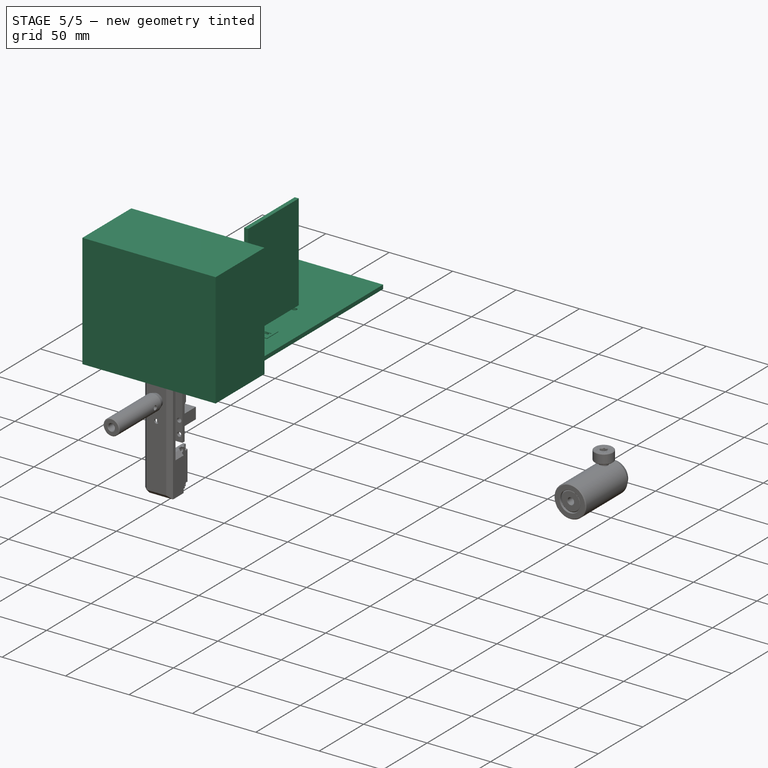
[diagram: stage 5 of 5 — iso view after this stage's code; geometry added in this stage tinted green]
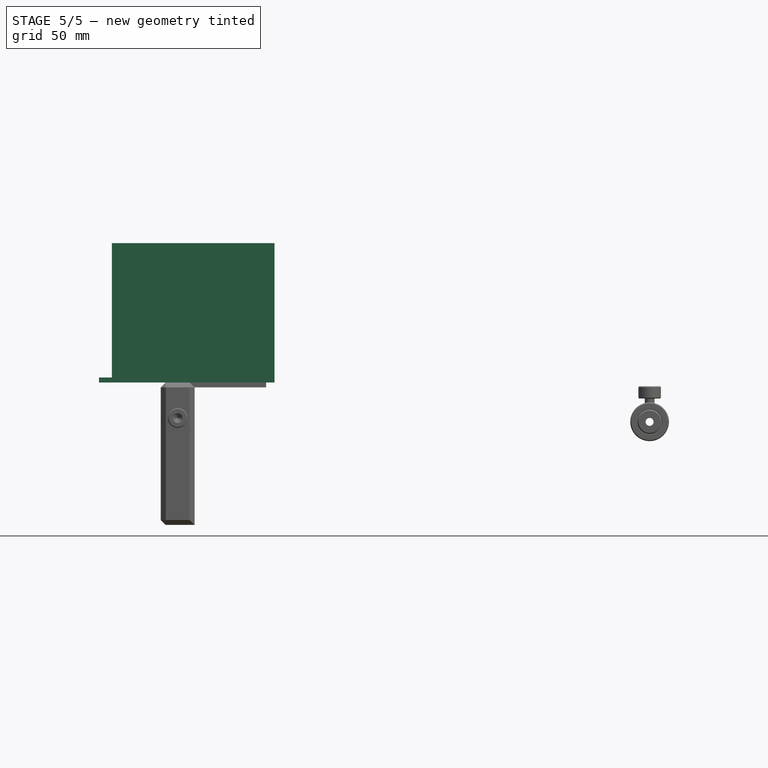
[diagram: stage 5 of 5 — front view after this stage's code; geometry added in this stage tinted green]
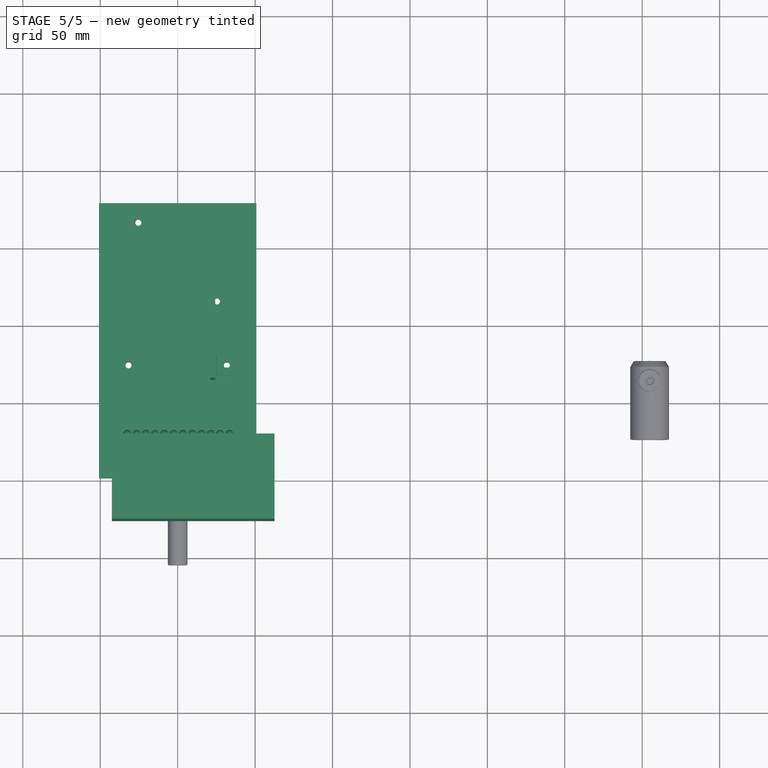
[diagram: stage 5 of 5 — top view after this stage's code; geometry added in this stage tinted green]
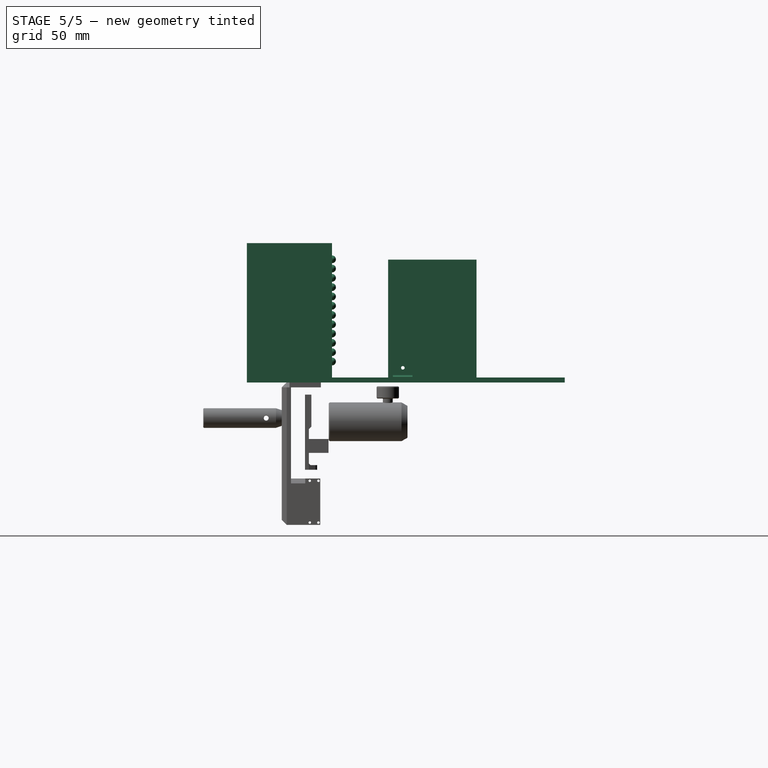
[diagram: stage 5 of 5 — right view after this stage's code; geometry added in this stage tinted green]
FEATURE [Sketcher::SketchObject] Sketch020  label="Rig platform"
  FullyConstrained = false
  MapMode = 5
  Support = -> [XY_Plane001]
  sketch-geometry (14):
    g0: LineSegment StartX=-50.8 StartY=0 StartZ=0 EndX=-50.8 EndY=177.8 EndZ=0
    g1: LineSegment StartX=-50.8 StartY=177.8 StartZ=0 EndX=50.8 EndY=177.8 EndZ=0
    g2: LineSegment StartX=50.8 StartY=177.8 StartZ=0 EndX=50.8 EndY=0 EndZ=0
    g3: LineSegment StartX=50.8 StartY=0 StartZ=0 EndX=12.7 EndY=0 EndZ=0
    g4: LineSegment StartX=12.7 StartY=0 StartZ=0 EndX=12.7 EndY=20.32 EndZ=0
    g5: LineSegment StartX=12.7 StartY=20.32 StartZ=0 EndX=-12.7 EndY=20.32 EndZ=0
    g6: LineSegment StartX=-12.7 StartY=20.32 StartZ=0 EndX=-12.7 EndY=0 EndZ=0
    g7: LineSegment StartX=-12.7 StartY=0 StartZ=0 EndX=-50.8 EndY=0 EndZ=0
    g8: Circle CenterX=-25.4 CenterY=165.125 CenterZ=0 NormalX=0 NormalY=0 NormalZ=1 AngleXU=0 Radius=1.93948
    g9: Circle CenterX=25.4 CenterY=114.3 CenterZ=0 NormalX=0 NormalY=0 NormalZ=1 AngleXU=0 Radius=1.93948
    g10: Circle CenterX=-31.75 CenterY=73.025 CenterZ=0 NormalX=0 NormalY=0 NormalZ=1 AngleXU=0 Radius=1.93948
    g11: Circle CenterX=31.75 CenterY=73.025 CenterZ=0 NormalX=0 NormalY=0 NormalZ=1 AngleXU=0 Radius=1.93948
    g12: Circle CenterX=-22.225 CenterY=12.7 CenterZ=0 NormalX=0 NormalY=0 NormalZ=1 AngleXU=0 Radius=1.28114
    g13: Circle CenterX=22.225 CenterY=12.7 CenterZ=0 NormalX=0 NormalY=0 NormalZ=1 AngleXU=0 Radius=1.28114
  constraints (42):
    c: Coincident(g0,g1)
    c: Coincident(g1,g2)
    c: Coincident(g2,g3)
    c: Coincident(g3,g4)
    c: Coincident(g4,g5)
    c: Coincident(g5,g6)
    c: Coincident(g6,g7)
    c: Distance(g1) = 101.6
    c: Distance(g0) = 177.8
    c: Vertical(g0)
    c: Horizontal(g1)
    c: Horizontal(g5)
    c: Vertical(g6)
    c: Vertical(g4)
    c: Horizontal(g7)
    c: Horizontal(g3)
    c: Vertical(g2)
    c: Equal(g7,g3)
    c: Equal(g6,g4)
    c: Coincident(g0,g7)
    c: Distance(g7) = 38.1
    c: Distance(g6) = 20.32
    c: DistanceX(g0,g8) = 25.4
    c: DistanceY(g8,g0) = 12.6746
    c: Radius(g8) = 1.93948
    c: Equal(g8,g9) = 1.93948
    c: Equal(g8,g10) = 1.93948
    c: Equal(g8,g11) = 1.93948
    c: DistanceX(g0,g9) = 76.2
    c: DistanceY(g9,g0) = 63.5
    c: DistanceX(g0,g10) = 19.05
    c: DistanceY(g10,g0) = 104.775
    c: DistanceX(g0,g11) = 82.55
    c: DistanceY(g11,g0) = 104.775
    c: Radius(g12) = 1.28114
    c: DistanceX(g0,g12) = 28.575
    c: DistanceY(g12,g0) = 165.1
    c: Equal(g12,g13) = 1.28114
    c: DistanceX(g12,g13) = 44.45
    c: DistanceY(g13,g12) = 0
    c: DistanceY(g6) = 0
    c: DistanceX(g6,g-1) = 12.7
FEATURE [PartDesign::Pad] Pad
  AllowMultiFace = false
  Direction = (1,1,1)
  Length = 3.175
  Length2 = 99.9998
  Profile = -> Sketch020
  Type = 0
FEATURE [PartDesign::Body] Body001
  Group = -> [Sketch020,Pad]
  Origin = -> Origin001
  Tip = -> Pad
FEATURE [Part::Feature] Part__Feature  label="MB1218 - Aluminium Breadboard 304.8 x 457.2 x 12.7mm_MB3030_M-1"
  Placement = pos=(215.9,0,-139.7) rot=(0,0,1;0rad)
  shape: bbox 457.2 x 12.7 x 304.8 mm, 1603 faces (baked)
FEATURE [Part::Feature] Part__Feature001  label="0337-E0W"
  Placement = pos=(279.4,12.7,-127) rot=(0,0,1;0rad)
  shape: bbox 12.69 x 105.7 x 12.69 mm, 56 faces, 2 solids (baked)
  expr: .Placement.Base.z = -5"
FEATURE [Part::Feature] Part__Feature002  label="0337-E0W001"
  Placement = pos=(279.4,12.7,-254) rot=(0,0,1;0rad)
  shape: bbox 12.69 x 105.7 x 12.69 mm, 56 faces, 2 solids (baked)
FEATURE [Part::Feature] Part__Feature003  label="0337-E0W002"
  Placement = pos=(330.2,12.7,-127) rot=(0,0,1;0rad)
  shape: bbox 12.69 x 105.7 x 12.69 mm, 56 faces, 2 solids (baked)
FEATURE [Part::Feature] Part__Feature004  label="0337-E0W003"
  Placement = pos=(330.2,12.7,-203.2) rot=(0,0,1;0rad)
  shape: bbox 12.69 x 105.7 x 12.69 mm, 56 faces, 2 solids (baked)
FEATURE [Part::Feature] Part__Feature005  label="0489-E0W"
  Placement = pos=(127,25.4,0) rot=(0,0,1;0rad)
  shape: bbox 25.01 x 25.41 x 35.42 mm, 362 faces, 6 solids (baked)
FEATURE [Part::Feature] Part__Feature006  label="0497-E0W"
  Placement = pos=(203.2,63.5,-177.8) rot=(0,0,1;0rad)
  shape: bbox 25.01 x 101.6 x 35.42 mm, 362 faces, 6 solids (baked)
FEATURE [Part::Feature] Part__Feature007  label="0497-E0W001"
  Placement = pos=(406.4,63.5,-177.8) rot=(0,0,1;0rad)
  shape: bbox 25.01 x 101.6 x 35.42 mm, 362 faces, 6 solids (baked)
FEATURE [Part::Feature] Part__Feature008  label="0495-E0W"
  Placement = pos=(177.8,50.8,-177.8) rot=(0,0,1;0rad)
  shape: bbox 25.01 x 76.21 x 35.42 mm, 362 faces, 6 solids (baked)
FEATURE [Part::Feature] Part__Feature009  label="0495-E0W001"
  Placement = pos=(431.8,50.8,-177.8) rot=(0,0,1;0rad)
  shape: bbox 25.01 x 76.21 x 35.42 mm, 362 faces, 6 solids (baked)
FEATURE [Part::Feature] Part__Feature010  label="0251-E0W"
  Placement = pos=(322.743,12.7,-23.2105) rot=(-1,0,0;1.5708rad)
  shape: bbox 69.95 x 32.77 x 62.23 mm, 3160 faces, 6 solids (baked)
  expr: .Placement.Base.x = 1' - 0.2936" + 1"
  expr: .Placement.Base.z = -1" + 0.0862"
FEATURE [Part::Feature] Part__Feature012  label="18785-E0W"
  Placement = pos=(50.8,203.2,-228.6) rot=(1,0,0;1.5708rad)
  shape: bbox 24.99 x 381 x 24.99 mm, 73 faces (baked)
FEATURE [Part::Feature] Part__Feature013  label="0337-E0W004"
  Placement = pos=(0,25.4,-4.8768) rot=(-1,0,0;1.5708rad)
  shape: bbox 12.69 x 12.69 x 105.7 mm, 56 faces, 2 solids (baked)
FEATURE [Part::Feature] Part__Feature014  label="0336-E0W"
  Placement = pos=(25.4,25.4,-4.8768) rot=(0,0.707107,-0.707107;3.14159rad)
  shape: bbox 12.69 x 12.69 x 80.34 mm, 56 faces, 2 solids (baked)
FEATURE [Part::Feature] Part__Feature015  label="0812-E0W"
  Placement = pos=(76.2,-38.1,11.1252) rot=(0,0.707107,-0.707107;3.14159rad)
  shape: bbox 50.8 x 39.23 x 16.53 mm, 310 faces, 6 solids (baked)
FEATURE [Part::Feature] Part__Feature016  label="0785-E0W"
  Placement = pos=(25.4,-50.8,9.652) rot=(0.57735,-0.57735,0.57735;4.18879rad)
  shape: bbox 152.4 x 19.05 x 9.525 mm, 1483 faces (baked)
FEATURE [Part::Feature] Part__Feature017  label="0783-E0W"
  Placement = pos=(12.7,50.8,9.652) rot=(0.57735,0.57735,0.57735;2.0944rad)
  shape: bbox 76.2 x 19.05 x 9.525 mm, 875 faces (baked)
FEATURE [Part::Feature] Fillet001  label="Headfixing clamp"
  Placement = pos=(115.824,-50.8,-4.3942) rot=(0.707107,0.707107,0;3.14159rad)
  shape: bbox 68.58 x 19.05 x 6.35 mm, 34 faces (baked)
FEATURE [Part::Feature] Part__Feature016001  label="0785-E0W001"
  Placement = pos=(0,0,0) rot=(0,0.707107,0.707107;3.14159rad)
  shape: bbox 19.05 x 152.4 x 9.525 mm, 1483 faces (baked)
FEATURE [Part::Feature] Part__Feature016002  label="0785-E0W002"
  Placement = pos=(25.4,0,0) rot=(0,0.707107,0.707107;3.14159rad)
  shape: bbox 19.05 x 152.4 x 9.525 mm, 1483 faces (baked)
FEATURE [App::Part] Part001  label="Headfixing assembly"
  Group = -> [Part__Feature013,Part__Feature014,Part__Feature015,Part__Feature016,Part__Feature017,Fillet001,Part__Feature016001,Part__Feature016002]
  Origin = -> Origin003
  Placement = pos=(177.8,152.4,57.15) rot=(0,0,1;0rad)
FEATURE [Part::Feature] Fillet002  label="Headfixing clamp001"
  Placement = pos=(-90.424,-50.8,-4.3942) rot=(0.707107,-0.707107,0;3.14159rad)
  shape: bbox 68.58 x 19.05 x 6.35 mm, 34 faces (baked)
FEATURE [Part::Feature] Part__Feature016003  label="0785-E0W003"
  Placement = pos=(25.4,0,0) rot=(0,0.707107,0.707107;3.14159rad)
  shape: bbox 19.05 x 152.4 x 9.525 mm, 1483 faces (baked)
FEATURE [Part::Feature] Part__Feature016004  label="0785-E0W004"
  Placement = pos=(0,0,0) rot=(0,0.707107,0.707107;3.14159rad)
  shape: bbox 19.05 x 152.4 x 9.525 mm, 1483 faces (baked)
FEATURE [Part::Feature] Part__Feature016005  label="0783-E0W001"
  Placement = pos=(12.7,50.8,9.652) rot=(0.57735,0.57735,0.57735;2.0944rad)
  shape: bbox 76.2 x 19.05 x 9.525 mm, 875 faces (baked)
FEATURE [Part::Feature] Part__Feature016006  label="0337-E0W005"
  Placement = pos=(25.4,25.4,-4.8768) rot=(-1,0,0;1.5708rad)
  shape: bbox 12.69 x 12.69 x 105.7 mm, 56 faces, 2 solids (baked)
FEATURE [Part::Feature] Part__Feature016007  label="0336-E0W001"
  Placement = pos=(0,25.4,-4.8768) rot=(0,0.707107,-0.707107;3.14159rad)
  shape: bbox 12.69 x 12.69 x 80.34 mm, 56 faces, 2 solids (baked)
FEATURE [Part::Feature] Part__Feature016008  label="0785-E0W005"
  Placement = pos=(0,-50.8,9.652) rot=(0.57735,-0.57735,0.57735;4.18879rad)
  shape: bbox 152.4 x 19.05 x 9.525 mm, 1483 faces (baked)
FEATURE [Part::Feature] Part__Feature016009  label="0812-E0W001"
  Placement = pos=(-50.8,-38.1,11.1252) rot=(0,0.707107,-0.707107;3.14159rad)
  shape: bbox 50.8 x 39.23 x 16.53 mm, 310 faces, 6 solids (baked)
FEATURE [App::Part] Part002  label="Headfixing assembly001"
  Group = -> [Part__Feature016006,Part__Feature016007,Part__Feature016009,Part__Feature016008,Part__Feature016005,Fillet002,Part__Feature016004,Part__Feature016003]
  Origin = -> Origin004
  Placement = pos=(406.4,152.4,57.15) rot=(0,0,1;0rad)
FEATURE [Part::Feature] Extrude001  label="Rig wall"
  Placement = pos=(285.75,280.34,-114.3) rot=(0,1,0;1.5708rad)
  shape: bbox 3.175 x 76.12 x 57.07 mm, 8 faces (baked)
FEATURE [Sketcher::SketchObject] Sketch  label="Wall bracket"
  FullyConstrained = false
  MapMode = 5
  sketch-geometry (8):
    g0: LineSegment StartX=280.768 StartY=105.309 StartZ=0 EndX=269.846 EndY=105.309 EndZ=0
    g1: LineSegment StartX=269.846 StartY=105.309 StartZ=0 EndX=269.846 EndY=104.801 EndZ=0
    g2: LineSegment StartX=269.846 StartY=104.801 StartZ=0 EndX=280.768 EndY=104.801 EndZ=0
    g3: LineSegment StartX=282.546 StartY=106.579 StartZ=0 EndX=282.546 EndY=117.501 EndZ=0
    g4: LineSegment StartX=282.038 StartY=117.501 StartZ=0 EndX=282.038 EndY=106.579 EndZ=0
    g5: ArcOfCircle CenterX=280.768 CenterY=106.579 CenterZ=0 NormalX=0 NormalY=0 NormalZ=1 AngleXU=0 Radius=1.27 StartAngle=4.71239 EndAngle=6.28319
    g6: ArcOfCircle CenterX=280.768 CenterY=106.579 CenterZ=0 NormalX=0 NormalY=0 NormalZ=1 AngleXU=0 Radius=1.778 StartAngle=4.71239 EndAngle=6.28319
    g7: LineSegment StartX=282.038 StartY=117.501 StartZ=0 EndX=282.546 EndY=117.501 EndZ=0
  constraints (24):
    c: Coincident(g0,g1)
    c: Coincident(g1,g2)
    c: Coincident(g3,g6)
    c: Coincident(g4,g5)
    c: Coincident(g0,g5)
    c: Coincident(g2,g6)
    c: Horizontal(g2)
    c: Vertical(g3)
    c: Horizontal(g0)
    c: Vertical(g4)
    c: Vertical(g1)
    c: DistanceX(g2,g6) = 0
    c: DistanceY(g6,g3) = 0
    c: DistanceX(g5,g0) = 0
    c: DistanceY(g1,g1) = 0.508
    c: DistanceX(g2,g0) = 0
    c: DistanceY(g1,g3) = 12.7
    c: DistanceX(g1,g3) = 12.7
    c: Coincident(g3,g7)
    c: Coincident(g4,g7)
    c: Horizontal(g7)
    c: Equal(g7,g1)
    c: DistanceY(g3,g4) = 0
    c: Radius(g5) = 1.27
FEATURE [PartDesign::Pad] Pad001
  AllowMultiFace = false
  Direction = (1,1,1)
  Length = 12.7
  Length2 = 99.9998
  Profile = -> Sketch
  Type = 0
FEATURE [Sketcher::SketchObject] Sketch021  label="Bracket slot"
  ExternalGeometry = -> [Pad001]
  FullyConstrained = false
  MapMode = 5
  Placement = pos=(0,105.309,0) rot=(0,0.707107,0.707107;3.14159rad)
  Support = -> [Pad001]
  sketch-geometry (5):
    g0: ArcOfCircle CenterX=-277.466 CenterY=6.35 CenterZ=0 NormalX=0 NormalY=0 NormalZ=1 AngleXU=0 Radius=1.50515 StartAngle=1.5708 EndAngle=4.71239
    g1: ArcOfCircle CenterX=-272.688 CenterY=6.35 CenterZ=0 NormalX=0 NormalY=0 NormalZ=1 AngleXU=0 Radius=1.50515 StartAngle=4.71239 EndAngle=7.85398
    g2: LineSegment StartX=-277.466 StartY=4.84485 StartZ=0 EndX=-272.688 EndY=4.84485 EndZ=0
    g3: LineSegment StartX=-277.466 StartY=7.85515 StartZ=0 EndX=-272.688 EndY=7.85515 EndZ=0
    g4: LineSegment StartX=-269.846 StartY=6.35 StartZ=0 EndX=-282.546 EndY=6.35 EndZ=0
  constraints (11):
    c: Tangent(g0,g3) = 1.5708
    c: Tangent(g0,g2) = -1.5708
    c: Tangent(g2,g1) = -1.5708
    c: Tangent(g3,g1) = 1.5708
    c: Horizontal(g2)
    c: Equal(g0,g1)
    c: PointOnObject(g4,g-3)
    c: Symmetric(g-3,g-3,g4)
    c: Distance(g4) = 12.7
    c: PointOnObject(g0,g4)
    c: DistanceX(g0,g4) = 7.62
FEATURE [PartDesign::Pocket] Pocket
  AllowMultiFace = false
  BaseFeature = -> Pad001
  Direction = (1,1,1)
  Length = 5.00126
  Length2 = 99.9998
  Profile = -> Sketch021
  Type = 1
FEATURE [Sketcher::SketchObject] Sketch022  label="Bracket hole"
  ExternalGeometry = -> [Pocket]
  FullyConstrained = false
  MapMode = 5
  Placement = pos=(282.038,0,0) rot=(0.57735,-0.57735,-0.57735;2.0944rad)
  Support = -> [Pocket]
  sketch-geometry (1):
    g0: Circle CenterX=-111.062 CenterY=6.20776 CenterZ=0 NormalX=0 NormalY=0 NormalZ=1 AngleXU=0 Radius=1.1626
  constraints (3):
    c: DistanceX(g-3,g0) = 6.4389
    c: DistanceY(g0,g-3) = 6.49224
    c: Radius(g0) = 1.1626
FEATURE [PartDesign::Pocket] Pocket001002
  AllowMultiFace = false
  BaseFeature = -> Pocket
  Direction = (1,1,1)
  Length = 5.00126
  Length2 = 99.9998
  Profile = -> Sketch022
  Type = 1
FEATURE [PartDesign::Body] Body  label="Rig wall bracket"
  Group = -> [Sketch,Pad001,Sketch021,Pocket,Sketch022,Pocket001002]
  Origin = -> Origin005
  Placement = pos=(0,0,-166.497) rot=(0,0,1;0rad)
  Tip = -> Pocket001002
FEATURE [Part::MultiFuse] Fusion  label="Rig wall assembly"
  Placement = pos=(-306.832,-87.0458,-101.6) rot=(1,0,0;1.5708rad)
  Shapes = -> [Extrude001,Body]
FEATURE [Part::Mirroring] Part__Mirroring  label="Rig wall assembly (Mirror #1)"
  Base = (333.961,-3.05176e-05,-180.999)
  Normal = (0,1,-1.19209e-07)
  Placement = pos=(0,-6e-15,5e-15) rot=(0,0,1;3.14159rad)
  Source = -> Fusion
FEATURE [Part::Box] Box001  label="Cube001"
  AttacherType = Attacher::AttachEngine3D
  Height = 90
  Length = 105
  Placement = pos=(-42.5,-27.5,0) rot=(0,0,1;0rad)
  Width = 55
  expr: .Placement.Base.x = -52.5mm + 10mm
FEATURE [Part::Sphere] Sphere002  label="LED"
  Angle1 = -90
  Angle2 = 90
  Angle3 = 360
  AttacherType = Attacher::AttachEngine3D
  Placement = pos=(33.3553,27.5082,79.5528) rot=(0,0,1;0rad)
  Radius = 2.5
  expr: .Placement.Base.x = 5.594" + 0.3451" * 2
  expr: Radius = 5mm / 2
FEATURE [Part::FeaturePython] Array  # Draft array (typed FeaturePython)
  Angle = 360
  ArrayType = 0
  Axis = (0,0,1)
  Base = -> Sphere002
  Center = (0,0,0)
  Fuse = false
  IntervalAxis = (0,0,0)
  IntervalX = (-5.99948,0,0)
  IntervalY = (0,0,0)
  IntervalZ = (0,0,-6)
  NumberPolar = 1
  NumberX = 12
  NumberY = 1
  NumberZ = 12
FEATURE [Sketcher::SketchObject] Sketch050  label="Rod mount"
  FullyConstrained = true
  MapMode = 5
  Placement = pos=(-1e-15,10,-56.3983) rot=(0,1,0;3.14159rad)
  expr: Constraints[10] = 2mm
  expr: Constraints[16] = 1.8mm / 2
  expr: Constraints[9] = 0.2313"
  sketch-geometry (7):
    g0: LineSegment StartX=-3.175 StartY=2.54 StartZ=0 EndX=-3.175 EndY=0 EndZ=0
    g1: LineSegment StartX=-3.175 StartY=0 StartZ=0 EndX=3.175 EndY=0 EndZ=0
    g2: LineSegment StartX=3.175 StartY=0 StartZ=0 EndX=3.175 EndY=2.54 EndZ=0
    g3: LineSegment StartX=3.175 StartY=2.54 StartZ=0 EndX=1.90374 EndY=6.48802 EndZ=0
    g4: ArcOfCircle CenterX=1e-16 CenterY=5.87502 CenterZ=0 NormalX=0 NormalY=0 NormalZ=1 AngleXU=0 Radius=2 StartAngle=0.311515 EndAngle=2.83008
    g5: LineSegment StartX=-1.90374 StartY=6.48802 StartZ=0 EndX=-3.175 EndY=2.54 EndZ=0
    g6: Circle CenterX=1e-16 CenterY=5.87502 CenterZ=0 NormalX=0 NormalY=0 NormalZ=1 AngleXU=0 Radius=0.9
  constraints (17):
    c: Coincident(g0,g1)
    c: Coincident(g1,g2)
    c: Coincident(g2,g3)
    c: Coincident(g0,g5)
    c: Symmetric(g0,g2,g-2)
    c: Symmetric(g0,g1,g-2)
    c: Vertical(g0)
    c: DistanceY(g0) = 0
    c: DistanceY(g0) = 2.54
    c: DistanceY(g4) = 5.87502
    c: Radius(g4) = 2
    c: Symmetric(g4,g3,g-2)
    c: Tangent(g4,g5) = -1.5708
    c: Coincident(g3,g4)
    c: DistanceX(g1,g1) = 6.35
    c: Coincident(g4,g6)
    c: Radius(g6) = 0.9
FEATURE [Part::Feature] Part__Feature016013005  label="Rail - 6725K31"
  Placement = pos=(0,0,0) rot=(0,1,0;1.5708rad)
  shape: bbox 9 x 6 x 80 mm, 56 faces (baked)
FEATURE [PartDesign::Chamfer] Chamfer003  label="Chamfer004"
  Angle = 45
  Base = -> Pocket013 [Edge4,Edge2,Edge1,Edge3,Edge10,Edge28,Edge76,Edge11]
  BaseFeature = -> Pocket013
  ChamferType = 0
  FlipDirection = false
  Placement = pos=(0,0,0) rot=(0.999999,0.001206,0;3.14159rad)
  Size = 3.175
  Size2 = 1
  SupportTransform = false
  UseAllEdges = false
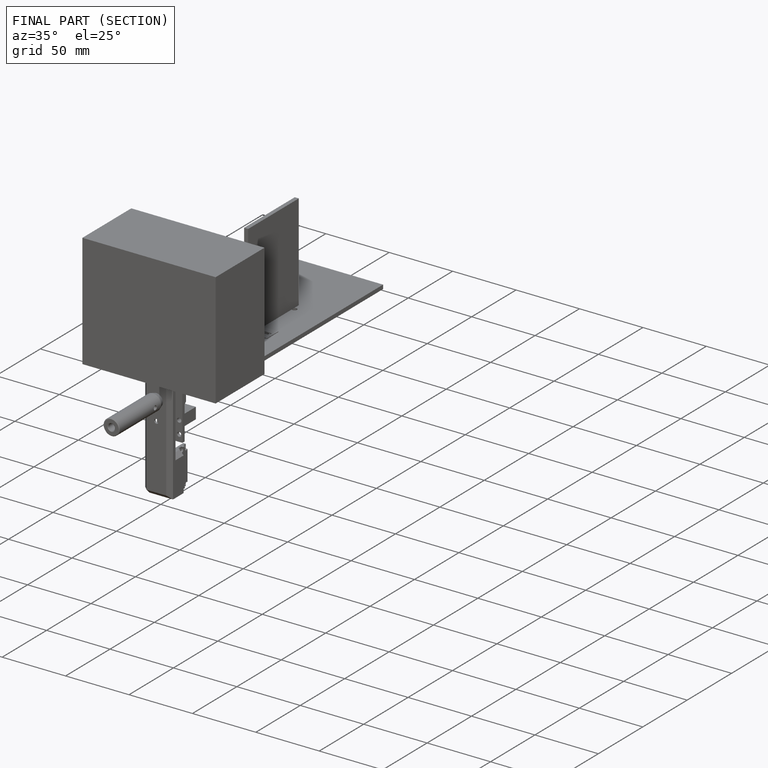
[diagram: finished part — half-section view (interior)]
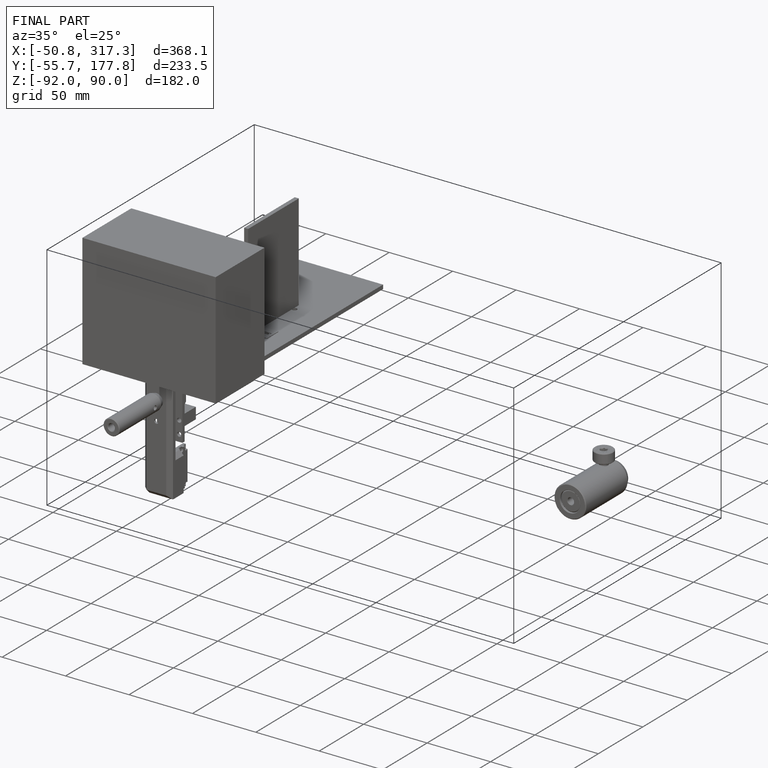
[diagram: finished part — iso view with bounding-box wireframe]
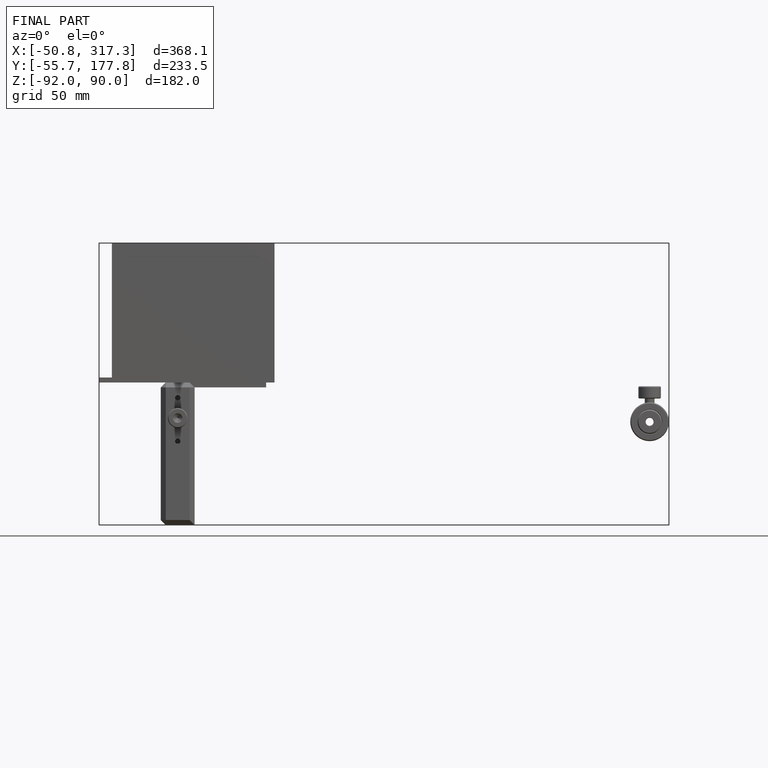
[diagram: finished part — front view with bounding-box wireframe]
